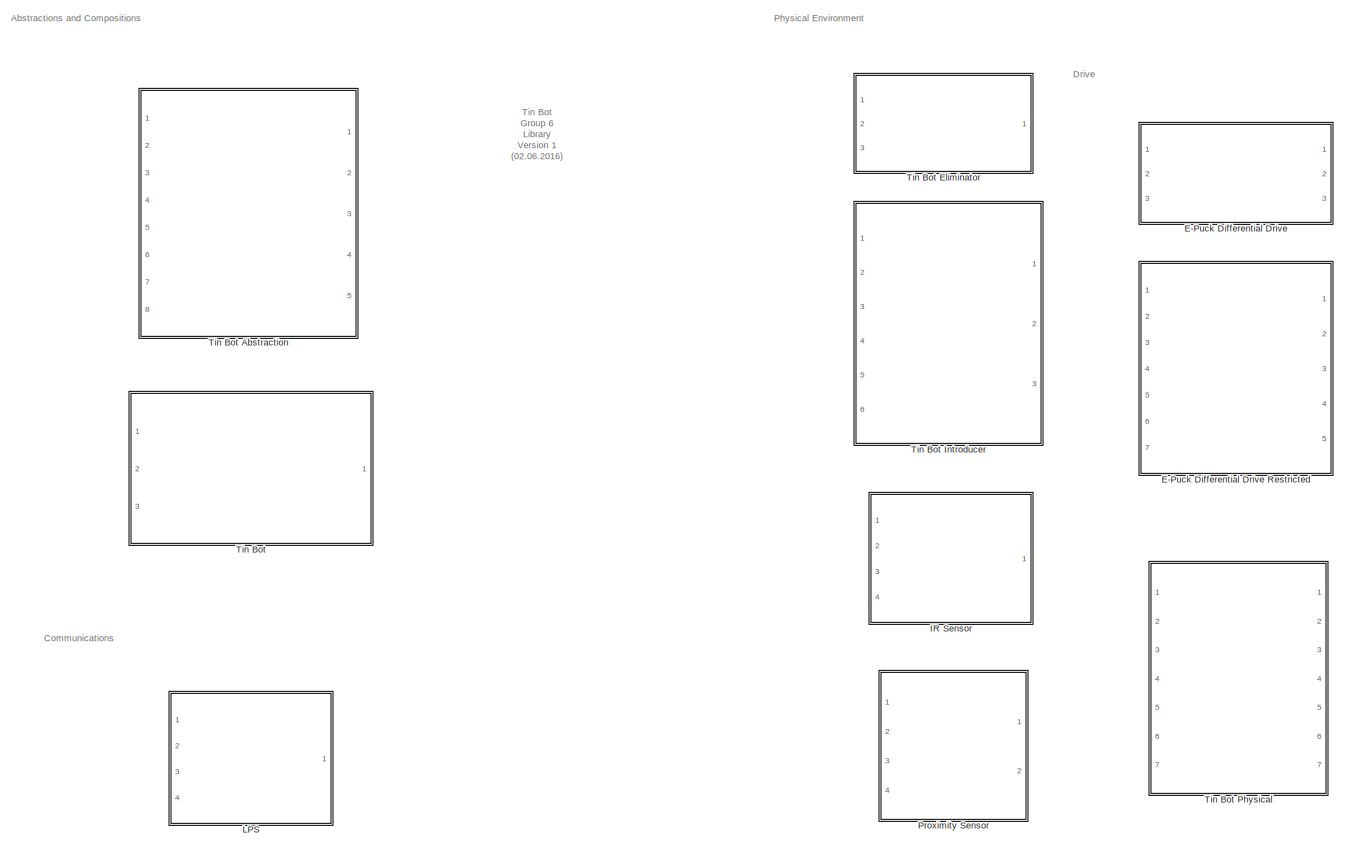
[diagram: root canvas - part 1/3, left side, full height]
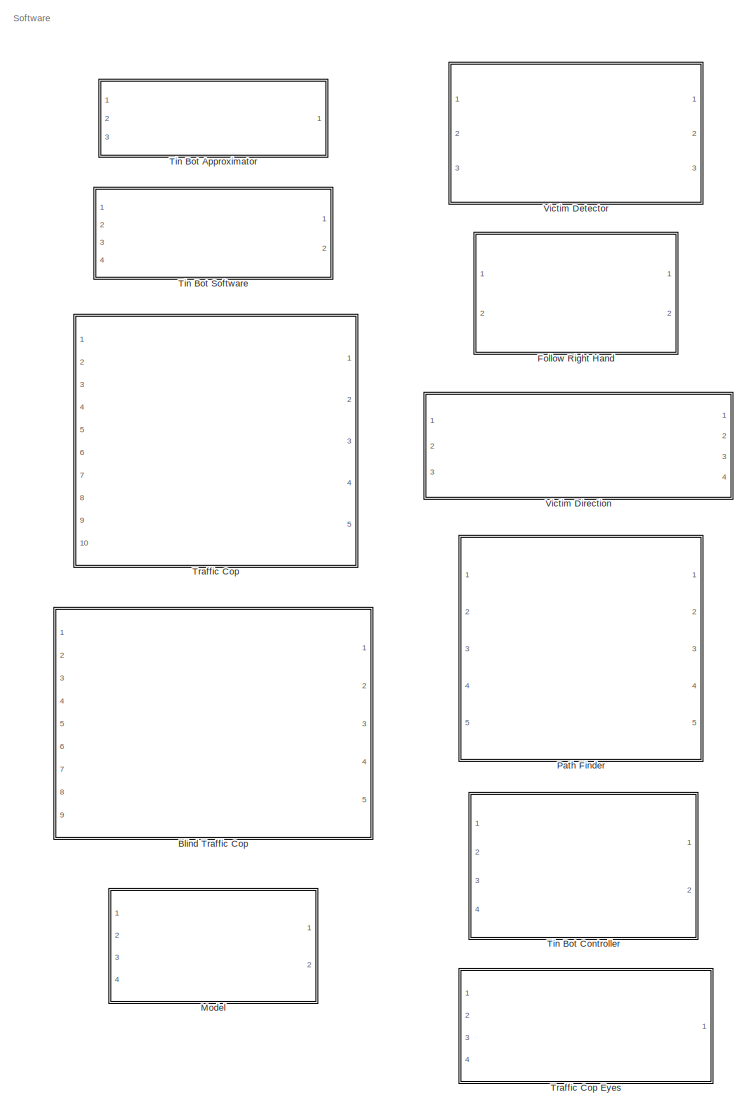
[diagram: root canvas - part 2/3, right side, full height]
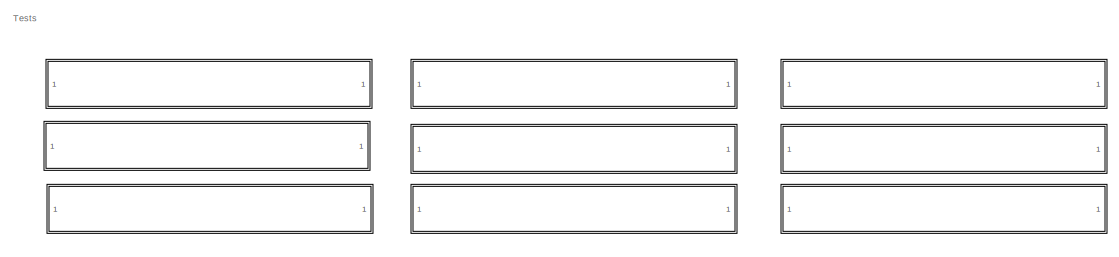
[diagram: root canvas - part 3/3, bottom left region]
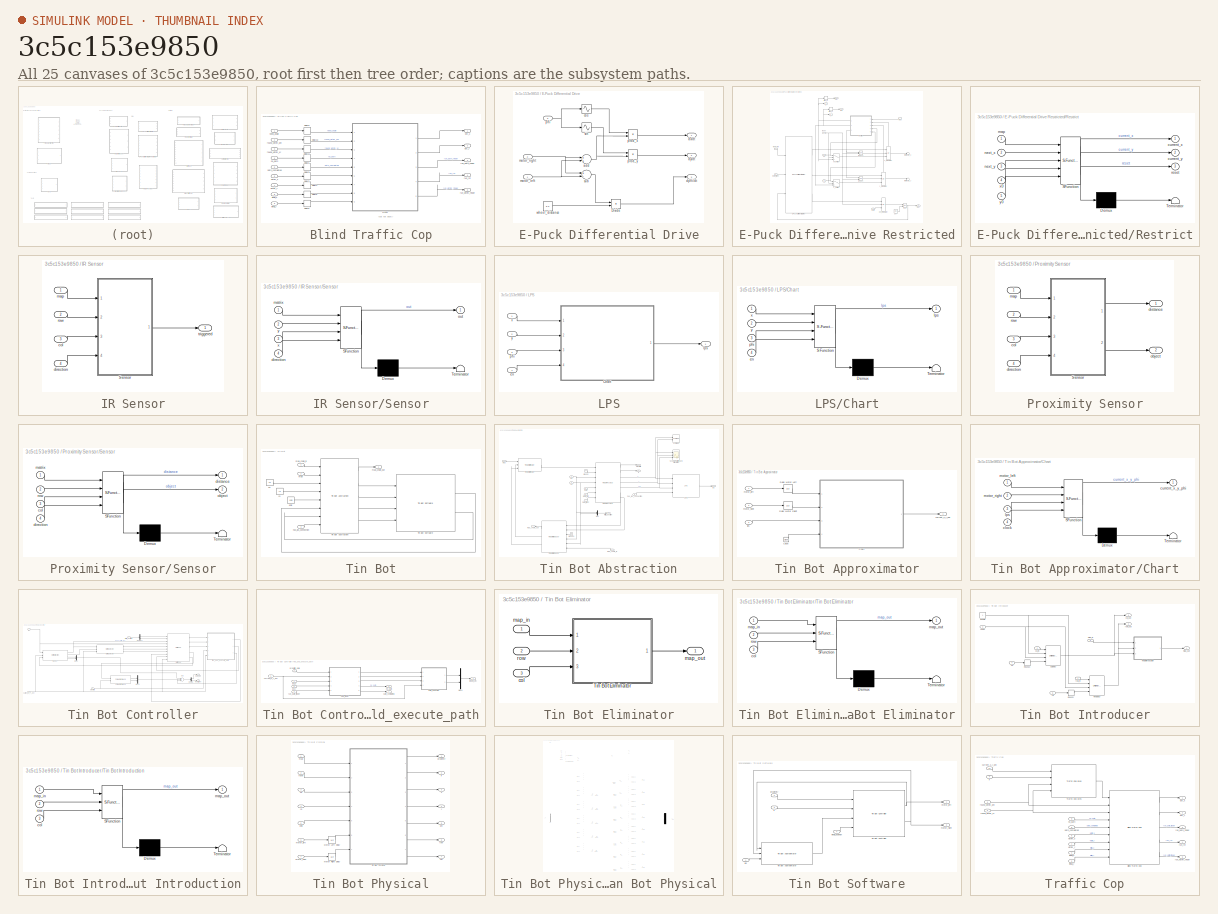
[diagram: thumbnail index - all 25 canvases of the model, root first then tree order]
MODEL slx_3c5c153e9850
KIND library
CONFIG AbsTol = auto
CONFIG FixedStep = auto
CONFIG MaxStep = auto
CONFIG MinStep = auto
CONFIG RelTol = 1e-3
CONFIG SampleTimeConstraint = Unconstrained
CONFIG Solver = ode45
CONFIG SolverMode = Auto
CONFIG SolverName = ode45
CONFIG StartTime = 0.0
CONFIG StopTime = 10.0
BLOCK [ModelReference]  
  ModelNameDialog = drive_test.slx
  ModelReferenceVersion = 1.6
  Ports = []
  Variant = off
BLOCK [ModelReference]   
  ModelNameDialog = follow_right_hand_test.slx
  ModelReferenceVersion = 1.48
  Ports = []
  Variant = off
BLOCK [ModelReference]    
  ModelNameDialog = approximator_test.slx
  ModelReferenceVersion = 1.58
  Ports = []
  Variant = off
BLOCK [ModelReference]     
  ModelNameDialog = controller_test.slx
  ModelReferenceVersion = 1.74
  Ports = []
  Variant = off
BLOCK [ModelReference]       
  ModelNameDialog = ir_test.slx
  ModelReferenceVersion = 1.24
  Ports = []
  Variant = off
BLOCK [ModelReference]        
  ModelNameDialog = path_finder_test.slx
  ModelReferenceVersion = 1.39
  Ports = []
  Variant = off
BLOCK [ModelReference]         
  ModelNameDialog = proximity_test.slx
  ModelReferenceVersion = 1.22
  Ports = []
  Variant = off
BLOCK [ModelReference]          
  ModelNameDialog = traffic_blind_test.mdl
  ModelReferenceVersion = 1.41
  Ports = []
  Variant = off
BLOCK [ModelReference]           
  ModelNameDialog = victim_direction_test.slx
  ModelReferenceVersion = 1.11
  Ports = []
  Variant = off
BLOCK [SubSystem] Blind Traffic Cop
  Ports = [9, 5]
  RequestExecContextInheritance = off
  Variant = off
BLOCK [Delay] Blind Traffic Cop/Delay1
  DelayLength = 1
  InputPortMap = u0
  Ports = [1, 1]
BLOCK [Delay] Blind Traffic Cop/Delay11
  DelayLength = 1
  InputPortMap = u0
  Ports = [1, 1]
BLOCK [Delay] Blind Traffic Cop/Delay13
  DelayLength = 1
  InputPortMap = u0
  Ports = [1, 1]
BLOCK [Delay] Blind Traffic Cop/Delay2
  DelayLength = 1
  InputPortMap = u0
  Ports = [1, 1]
BLOCK [Delay] Blind Traffic Cop/Delay3
  DelayLength = 1
  InputPortMap = u0
  Ports = [1, 1]
BLOCK [Delay] Blind Traffic Cop/Delay4
  DelayLength = 1
  InputPortMap = u0
  Ports = [1, 1]
BLOCK [Delay] Blind Traffic Cop/Delay5
  DelayLength = 1
  InputPortMap = u0
  Ports = [1, 1]
BLOCK [Delay] Blind Traffic Cop/Delay6
  DelayLength = 1
  InputPortMap = u0
  Ports = [1, 1]
BLOCK [Delay] Blind Traffic Cop/Delay9
  DelayLength = 1
  InputPortMap = u0
  Ports = [1, 1]
BLOCK [ModelReference] Blind Traffic Cop/Model
  ModelNameDialog = blind_cop.mdl
  ModelReferenceVersion = 1.103
  Ports = [9, 5]
  Variant = off
BLOCK [Outport] Blind Traffic Cop/dst_x
  IconDisplay = Port number
BLOCK [Outport] Blind Traffic Cop/dst_y
  IconDisplay = Port number
  Port = 2
BLOCK [Inport] Blind Traffic Cop/found_victim_phi
  IconDisplay = Port number
  Port = 2
BLOCK [Inport] Blind Traffic Cop/found_victim_xy
  IconDisplay = Port number
  Port = 3
BLOCK [Inport] Blind Traffic Cop/initial_x
  IconDisplay = Port number
  Port = 8
BLOCK [Inport] Blind Traffic Cop/initial_y
  IconDisplay = Port number
  Port = 9
BLOCK [Inport] Blind Traffic Cop/need_angle
  IconDisplay = Port number
BLOCK [Inport] Blind Traffic Cop/no_path
  IconDisplay = Port number
  Port = 4
BLOCK [Inport] Blind Traffic Cop/path_completed
  IconDisplay = Port number
  Port = 5
BLOCK [Outport] Blind Traffic Cop/run_path_finder
  IconDisplay = Port number
  Port = 3
BLOCK [Outport] Blind Traffic Cop/run_rhr
  IconDisplay = Port number
  Port = 4
BLOCK [Outport] Blind Traffic Cop/run_victim_finder
  IconDisplay = Port number
  Port = 5
BLOCK [Inport] Blind Traffic Cop/victim_x
  IconDisplay = Port number
  Port = 6
BLOCK [Inport] Blind Traffic Cop/victim_y
  IconDisplay = Port number
  Port = 7
BLOCK [SubSystem] E-Puck Differential Drive
  Ports = [3, 3]
  RequestExecContextInheritance = off
  TreatAsAtomicUnit = on
  Variant = off
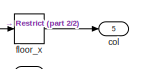
[diagram: E-Puck Differential Drive Restricted - part 1/2, top center region]
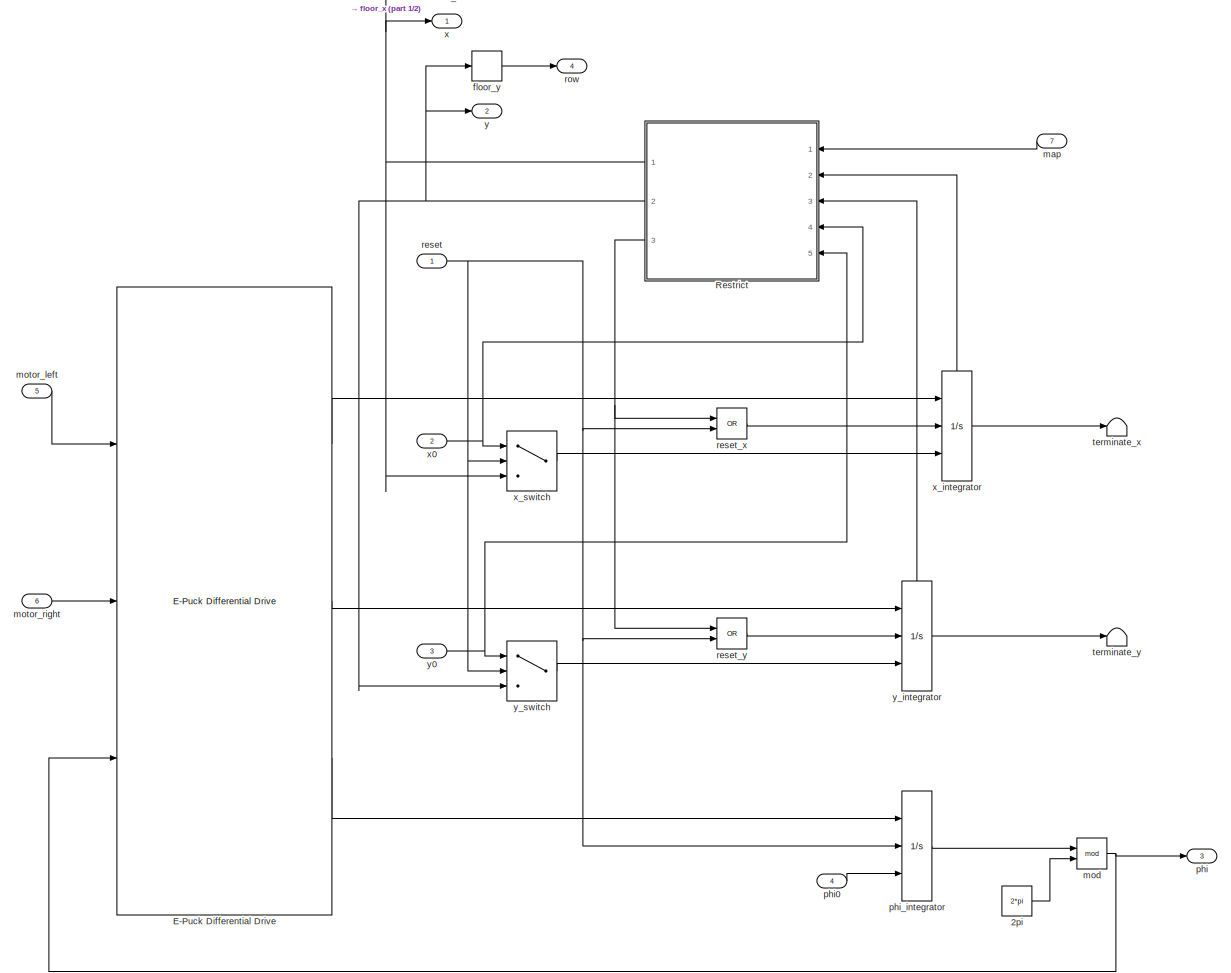
[diagram: E-Puck Differential Drive Restricted - part 2/2, most of the canvas]
BLOCK [SubSystem] E-Puck Differential Drive Restricted
  Ports = [7, 5]
  RequestExecContextInheritance = off
  Variant = off
BLOCK [Constant] E-Puck Differential Drive Restricted/2pi
  Value = 2*pi
BLOCK [Reference] E-Puck Differential Drive Restricted/E-Puck Differential Drive  REF=tinbot/E-Puck Differential Drive  (lib defined in slx_3c5c153e9850, slx_5b2796442827, +1 more)
  Ports = [3, 3]
  SourceBlock = tinbot/E-Puck Differential Drive
BLOCK [SubSystem] E-Puck Differential Drive Restricted/Restrict
  ErrorFcn = Stateflow.Translate.translate
  PermitHierarchicalResolution = ExplicitOnly
  Ports = [5, 3]
  RequestExecContextInheritance = off
  SFBlockType = Chart
  TreatAsAtomicUnit = on
  Variant = off
BLOCK [Demux] E-Puck Differential Drive Restricted/Restrict/ Demux 
  Outputs = 1
  Ports = [1, 1]
BLOCK [S-Function] E-Puck Differential Drive Restricted/Restrict/ SFunction 
  EnableBusSupport = on
  FunctionName = sf_sfun
  PortCounts = [5 4]
  Ports = [5, 4]
  SFunctionDeploymentMode = off
  Tag = Stateflow S-Function tinbot 3
BLOCK [Terminator] E-Puck Differential Drive Restricted/Restrict/ Terminator 
BLOCK [Outport] E-Puck Differential Drive Restricted/Restrict/current_x
  IconDisplay = Port number
BLOCK [Outport] E-Puck Differential Drive Restricted/Restrict/current_y
  IconDisplay = Port number
  Port = 2
BLOCK [Inport] E-Puck Differential Drive Restricted/Restrict/map
  IconDisplay = Port number
BLOCK [Inport] E-Puck Differential Drive Restricted/Restrict/next_x
  IconDisplay = Port number
  Port = 2
BLOCK [Inport] E-Puck Differential Drive Restricted/Restrict/next_y
  IconDisplay = Port number
  Port = 3
BLOCK [Outport] E-Puck Differential Drive Restricted/Restrict/reset
  IconDisplay = Port number
  Port = 3
BLOCK [Inport] E-Puck Differential Drive Restricted/Restrict/x0
  IconDisplay = Port number
  Port = 4
BLOCK [Inport] E-Puck Differential Drive Restricted/Restrict/y0
  IconDisplay = Port number
  Port = 5
BLOCK [Outport] E-Puck Differential Drive Restricted/col
  IconDisplay = Port number
  Port = 5
BLOCK [Rounding] E-Puck Differential Drive Restricted/floor_x
BLOCK [Rounding] E-Puck Differential Drive Restricted/floor_y
BLOCK [Inport] E-Puck Differential Drive Restricted/map
  IconDisplay = Port number
  Port = 7
BLOCK [Math] E-Puck Differential Drive Restricted/mod
  Operator = mod
  Ports = [2, 1]
BLOCK [Inport] E-Puck Differential Drive Restricted/motor_left
  IconDisplay = Port number
  Port = 5
BLOCK [Inport] E-Puck Differential Drive Restricted/motor_right
  IconDisplay = Port number
  Port = 6
BLOCK [Outport] E-Puck Differential Drive Restricted/phi 
  IconDisplay = Port number
  Port = 3
BLOCK [Inport] E-Puck Differential Drive Restricted/phi0
  IconDisplay = Port number
  Port = 4
BLOCK [Integrator] E-Puck Differential Drive Restricted/phi_integrator
  ExternalReset = rising
  InitialConditionSource = external
  Ports = [3, 1]
BLOCK [Inport] E-Puck Differential Drive Restricted/reset
  IconDisplay = Port number
BLOCK [Logic] E-Puck Differential Drive Restricted/reset_x
  AllPortsSameDT = off
  Operator = OR
  OutDataTypeStr = boolean
  Ports = [2, 1]
BLOCK [Logic] E-Puck Differential Drive Restricted/reset_y
  AllPortsSameDT = off
  Operator = OR
  OutDataTypeStr = boolean
  Ports = [2, 1]
BLOCK [Outport] E-Puck Differential Drive Restricted/row
  IconDisplay = Port number
  Port = 4
BLOCK [Terminator] E-Puck Differential Drive Restricted/terminate_x
BLOCK [Terminator] E-Puck Differential Drive Restricted/terminate_y
BLOCK [Outport] E-Puck Differential Drive Restricted/x 
  IconDisplay = Port number
BLOCK [Inport] E-Puck Differential Drive Restricted/x0
  IconDisplay = Port number
  Port = 2
BLOCK [Integrator] E-Puck Differential Drive Restricted/x_integrator
  ExternalReset = rising
  InitialConditionSource = external
  Ports = [3, 1, 0, 0, 1]
  ShowStatePort = on
BLOCK [Switch] E-Puck Differential Drive Restricted/x_switch
  Criteria = u2 ~= 0
  InputSameDT = off
  SaturateOnIntegerOverflow = off
BLOCK [Outport] E-Puck Differential Drive Restricted/y
  IconDisplay = Port number
  Port = 2
BLOCK [Inport] E-Puck Differential Drive Restricted/y0
  IconDisplay = Port number
  Port = 3
BLOCK [Integrator] E-Puck Differential Drive Restricted/y_integrator
  ExternalReset = rising
  InitialConditionSource = external
  Ports = [3, 1, 0, 0, 1]
  ShowStatePort = on
BLOCK [Switch] E-Puck Differential Drive Restricted/y_switch
  Criteria = u2 ~= 0
  InputSameDT = off
  SaturateOnIntegerOverflow = off
BLOCK [Product] E-Puck Differential Drive/Divide
  InputSameDT = off
  Inputs = */
  OutDataTypeStr = Inherit: Inherit via internal rule
  Ports = [2, 1]
  RndMeth = Floor
  SaturateOnIntegerOverflow = off
BLOCK [Sum] E-Puck Differential Drive/add
  InputSameDT = off
  OutDataTypeStr = Inherit: Inherit via internal rule
  Ports = [2, 1]
  SaturateOnIntegerOverflow = off
BLOCK [Sin] E-Puck Differential Drive/cos
  Amplitude = 0.5
  Phase = pi/2
  Ports = [1, 1]
  SampleTime = 0
  TimeSource = Use external signal
BLOCK [Outport] E-Puck Differential Drive/dphi//dt
  IconDisplay = Port number
  Port = 3
BLOCK [Outport] E-Puck Differential Drive/dx//dt
  IconDisplay = Port number
BLOCK [Outport] E-Puck Differential Drive/dy//dt
  IconDisplay = Port number
  Port = 2
BLOCK [Inport] E-Puck Differential Drive/motor_left
  IconDisplay = Port number
BLOCK [Inport] E-Puck Differential Drive/motor_right
  IconDisplay = Port number
  Port = 2
BLOCK [Inport] E-Puck Differential Drive/phi
  IconDisplay = Port number
  Port = 3
BLOCK [Product] E-Puck Differential Drive/prod_x
  InputSameDT = off
  OutDataTypeStr = Inherit: Inherit via internal rule
  Ports = [2, 1]
  RndMeth = Floor
  SaturateOnIntegerOverflow = off
BLOCK [Product] E-Puck Differential Drive/prod_y
  InputSameDT = off
  OutDataTypeStr = Inherit: Inherit via internal rule
  Ports = [2, 1]
  RndMeth = Floor
  SaturateOnIntegerOverflow = off
BLOCK [Sin] E-Puck Differential Drive/sin 
  Amplitude = 0.5
  Ports = [1, 1]
  SampleTime = 0
  TimeSource = Use external signal
BLOCK [Sum] E-Puck Differential Drive/sub
  InputSameDT = off
  Inputs = +-
  OutDataTypeStr = Inherit: Inherit via internal rule
  Ports = [2, 1]
  SaturateOnIntegerOverflow = off
BLOCK [Constant] E-Puck Differential Drive/wheel_distance
  Value = 5.3
BLOCK [ModelReference] Follow Right Hand
  ModelNameDialog = follow_right_hand.mdl
  ModelReferenceVersion = 1.29
  Ports = [2, 2]
  Variant = off
BLOCK [SubSystem] IR Sensor
  Ports = [4, 1]
  RequestExecContextInheritance = off
  Variant = off
BLOCK [SubSystem] IR Sensor/Sensor
  ErrorFcn = Stateflow.Translate.translate
  PermitHierarchicalResolution = ExplicitOnly
  Ports = [4, 1]
  RequestExecContextInheritance = off
  SFBlockType = MATLAB Function
  TreatAsAtomicUnit = on
  Variant = off
BLOCK [Demux] IR Sensor/Sensor/ Demux 
  Outputs = 1
  Ports = [1, 1]
BLOCK [S-Function] IR Sensor/Sensor/ SFunction 
  EnableBusSupport = on
  FunctionName = sf_sfun
  PortCounts = [4 2]
  Ports = [4, 2]
  SFunctionDeploymentMode = off
  Tag = Stateflow S-Function tinbot 5
BLOCK [Terminator] IR Sensor/Sensor/ Terminator 
BLOCK [Inport] IR Sensor/Sensor/direction
  IconDisplay = Port number
  Port = 4
BLOCK [Inport] IR Sensor/Sensor/matrix
  IconDisplay = Port number
BLOCK [Outport] IR Sensor/Sensor/out
  IconDisplay = Port number
BLOCK [Inport] IR Sensor/Sensor/x
  IconDisplay = Port number
  Port = 3
BLOCK [Inport] IR Sensor/Sensor/y
  IconDisplay = Port number
  Port = 2
BLOCK [Inport] IR Sensor/col
  IconDisplay = Port number
  Port = 3
BLOCK [Inport] IR Sensor/direction
  IconDisplay = Port number
  Port = 4
BLOCK [Inport] IR Sensor/map
  IconDisplay = Port number
BLOCK [Inport] IR Sensor/row
  IconDisplay = Port number
  Port = 2
BLOCK [Outport] IR Sensor/triggered
  IconDisplay = Port number
  OutDataTypeStr = boolean
BLOCK [SubSystem] LPS
  Ports = [4, 1]
  RequestExecContextInheritance = off
  Variant = off
BLOCK [SubSystem] LPS/Chart
  ErrorFcn = Stateflow.Translate.translate
  PermitHierarchicalResolution = ExplicitOnly
  Ports = [4, 1]
  RequestExecContextInheritance = off
  SFBlockType = Chart
  Variant = off
BLOCK [Demux] LPS/Chart/ Demux 
  Outputs = 1
  Ports = [1, 1]
BLOCK [S-Function] LPS/Chart/ SFunction 
  EnableBusSupport = off
  FunctionName = sf_sfun
  PortCounts = [4 2]
  Ports = [4, 2]
  SFunctionDeploymentMode = off
  Tag = Stateflow S-Function tinbot 6
BLOCK [Terminator] LPS/Chart/ Terminator 
BLOCK [Inport] LPS/Chart/en
  IconDisplay = Port number
  Port = 4
BLOCK [Outport] LPS/Chart/lps
  IconDisplay = Port number
BLOCK [Inport] LPS/Chart/phi
  IconDisplay = Port number
  Port = 3
BLOCK [Inport] LPS/Chart/x
  IconDisplay = Port number
BLOCK [Inport] LPS/Chart/y
  IconDisplay = Port number
  Port = 2
BLOCK [Inport] LPS/en
  IconDisplay = Port number
  Port = 4
BLOCK [Outport] LPS/lps
  IconDisplay = Port number
BLOCK [Inport] LPS/phi
  IconDisplay = Port number
  Port = 3
BLOCK [Inport] LPS/x
  IconDisplay = Port number
BLOCK [Inport] LPS/y
  IconDisplay = Port number
  Port = 2
BLOCK [ModelReference] Model
  ModelNameDialog = Path.slx
  ModelReferenceVersion = 1.30
  Ports = [4, 2]
  Variant = off
BLOCK [ModelReference] Path Finder
  ModelNameDialog = path_finder.mdl
  ModelReferenceVersion = 1.117
  Ports = [5, 5]
  Variant = off
BLOCK [SubSystem] Proximity Sensor
  Ports = [4, 2]
  RequestExecContextInheritance = off
  Variant = off
BLOCK [SubSystem] Proximity Sensor/Sensor
  ErrorFcn = Stateflow.Translate.translate
  PermitHierarchicalResolution = ExplicitOnly
  Ports = [4, 2]
  RequestExecContextInheritance = off
  SFBlockType = MATLAB Function
  TreatAsAtomicUnit = on
  Variant = off
BLOCK [Demux] Proximity Sensor/Sensor/ Demux 
  Outputs = 1
  Ports = [1, 1]
BLOCK [S-Function] Proximity Sensor/Sensor/ SFunction 
  EnableBusSupport = on
  FunctionName = sf_sfun
  PortCounts = [4 3]
  Ports = [4, 3]
  SFunctionDeploymentMode = off
  Tag = Stateflow S-Function tinbot 4
BLOCK [Terminator] Proximity Sensor/Sensor/ Terminator 
BLOCK [Inport] Proximity Sensor/Sensor/col
  IconDisplay = Port number
  Port = 3
BLOCK [Inport] Proximity Sensor/Sensor/direction
  IconDisplay = Port number
  Port = 4
BLOCK [Outport] Proximity Sensor/Sensor/distance
  IconDisplay = Port number
BLOCK [Inport] Proximity Sensor/Sensor/matrix
  IconDisplay = Port number
BLOCK [Outport] Proximity Sensor/Sensor/object
  IconDisplay = Port number
  Port = 2
BLOCK [Inport] Proximity Sensor/Sensor/row
  IconDisplay = Port number
  Port = 2
BLOCK [Inport] Proximity Sensor/col
  IconDisplay = Port number
  Port = 3
BLOCK [Inport] Proximity Sensor/direction
  IconDisplay = Port number
  Port = 4
BLOCK [Outport] Proximity Sensor/distance
  IconDisplay = Port number
BLOCK [Inport] Proximity Sensor/map
  IconDisplay = Port number
BLOCK [Outport] Proximity Sensor/object
  IconDisplay = Port number
  Port = 2
BLOCK [Inport] Proximity Sensor/row
  IconDisplay = Port number
  Port = 2
BLOCK [SubSystem] Tin Bot
  Ports = [3, 1]
  RequestExecContextInheritance = off
  Variant = off
BLOCK [SubSystem] Tin Bot Abstraction
  Ports = [8, 5]
  RequestExecContextInheritance = off
  Variant = off
BLOCK [Ground] Tin Bot Abstraction/Ground
BLOCK [Ground] Tin Bot Abstraction/Ground1
BLOCK [Reference] Tin Bot Abstraction/LPS  REF=tinbot/LPS  (lib defined in slx_3c5c153e9850, slx_5b2796442827, +1 more)
  Ports = [4, 1]
  SourceBlock = tinbot/LPS
BLOCK [Mux] Tin Bot Abstraction/Mux
  DisplayOption = bar
  Inputs = 2
  Ports = [2, 1]
BLOCK [Scope] Tin Bot Abstraction/Scope Position and Orientation
  NumInputPorts = 3
  Ports = [3]
  ScopeSpecificationString = Simulink.scopes.TimeScopeBlockCfg('CurrentConfiguration', extmgr.ConfigurationSet(extmgr.Configuration('Core','General UI',true),extmgr.Configuration('Core','Source UI',true),extmgr.Configuration('Sources','WiredSimulink',true),extmgr.Configuration('Visuals','Time Domain',true),extmgr.Configuration('Tools','Plot Navigation',true),extmgr.Configuration('Tools','Measurements',true,'Version','2016a'))...<+48ch>
BLOCK [Reference] Tin Bot Abstraction/Tin Bot Eliminator  REF=tinbot/Tin Bot Eliminator  (lib defined in slx_3c5c153e9850, slx_5b2796442827, +1 more)
  Ports = [3, 1]
  SourceBlock = tinbot/Tin Bot Eliminator
BLOCK [Reference] Tin Bot Abstraction/Tin Bot Introducer  REF=tinbot/Tin Bot Introducer  (lib defined in slx_3c5c153e9850, slx_5b2796442827, +1 more)
  Ports = [6, 3]
  SourceBlock = tinbot/Tin Bot Introducer
BLOCK [Reference] Tin Bot Abstraction/Tin Bot Physical  REF=tinbot/Tin Bot Physical  (lib defined in slx_3c5c153e9850, slx_5b2796442827, +1 more)
  Ports = [7, 7]
  SourceBlock = tinbot/Tin Bot Physical
BLOCK [Reference] Tin Bot Abstraction/XY Graph  REF=simulink/Sinks/XY Graph
  Ports = [2]
  SourceBlock = simulink/Sinks/XY Graph
  SourceType = XY scope.
BLOCK [Inport] Tin Bot Abstraction/has_lps_connection
  IconDisplay = Port number
  Port = 8
BLOCK [Outport] Tin Bot Abstraction/initial_position
  IconDisplay = Port number
  Port = 5
BLOCK [Outport] Tin Bot Abstraction/ir
  IconDisplay = Port number
  Port = 4
BLOCK [Outport] Tin Bot Abstraction/lps
  IconDisplay = Port number
  Port = 2
BLOCK [Inport] Tin Bot Abstraction/map
  IconDisplay = Port number
  Port = 2
BLOCK [Inport] Tin Bot Abstraction/map_chain_in
  IconDisplay = Port number
BLOCK [Outport] Tin Bot Abstraction/map_chain_out
  IconDisplay = Port number
BLOCK [Inport] Tin Bot Abstraction/motor_left
  IconDisplay = Port number
  Port = 6
BLOCK [Inport] Tin Bot Abstraction/motor_right
  IconDisplay = Port number
  Port = 7
BLOCK [Inport] Tin Bot Abstraction/phi0
  IconDisplay = Port number
  Port = 5
BLOCK [Outport] Tin Bot Abstraction/proximity
  IconDisplay = Port number
  Port = 3
BLOCK [Inport] Tin Bot Abstraction/x0
  IconDisplay = Port number
  Port = 3
BLOCK [Inport] Tin Bot Abstraction/y0
  IconDisplay = Port number
  Port = 4
BLOCK [SubSystem] Tin Bot Approximator
  Ports = [3, 1]
  RequestExecContextInheritance = off
  Variant = off
BLOCK [SubSystem] Tin Bot Approximator/Chart
  ErrorFcn = Stateflow.Translate.translate
  PermitHierarchicalResolution = ExplicitOnly
  Ports = [4, 1]
  RequestExecContextInheritance = off
  SFBlockType = Chart
  TreatAsAtomicUnit = on
  Variant = off
BLOCK [Demux] Tin Bot Approximator/Chart/ Demux 
  Outputs = 1
  Ports = [1, 1]
BLOCK [S-Function] Tin Bot Approximator/Chart/ SFunction 
  EnableBusSupport = on
  FunctionName = sf_sfun
  PortCounts = [4 2]
  Ports = [4, 2]
  SFunctionDeploymentMode = off
  Tag = Stateflow S-Function tinbot 7
BLOCK [Terminator] Tin Bot Approximator/Chart/ Terminator 
BLOCK [Inport] Tin Bot Approximator/Chart/clock
  IconDisplay = Port number
  Port = 4
BLOCK [Outport] Tin Bot Approximator/Chart/current_x_y_phi
  IconDisplay = Port number
BLOCK [Inport] Tin Bot Approximator/Chart/lps
  IconDisplay = Port number
  Port = 3
BLOCK [Inport] Tin Bot Approximator/Chart/motor_left
  IconDisplay = Port number
BLOCK [Inport] Tin Bot Approximator/Chart/motor_right
  IconDisplay = Port number
  Port = 2
BLOCK [Clock] Tin Bot Approximator/Clock
BLOCK [UnitDelay] Tin Bot Approximator/Delay Motor Left
  InputProcessing = Elements as channels (sample based)
  SampleTime = -1
BLOCK [UnitDelay] Tin Bot Approximator/Delay Motor Right
  InputProcessing = Elements as channels (sample based)
  SampleTime = -1
BLOCK [Outport] Tin Bot Approximator/current_x_y_phi
  IconDisplay = Port number
  PortDimensions = [3]
BLOCK [Inport] Tin Bot Approximator/lps
  IconDisplay = Port number
  Port = 3
  PortDimensions = [3]
BLOCK [Inport] Tin Bot Approximator/motor_left
  IconDisplay = Port number
BLOCK [Inport] Tin Bot Approximator/motor_right
  IconDisplay = Port number
  Port = 2
BLOCK [SubSystem] Tin Bot Controller
  Ports = [4, 2]
  RequestExecContextInheritance = off
  Variant = off
BLOCK [Sum] Tin Bot Controller/Add
  InputSameDT = off
  Inputs = +++
  OutDataTypeStr = Inherit: Inherit via internal rule
  Ports = [3, 1]
  SaturateOnIntegerOverflow = off
BLOCK [Demux] Tin Bot Controller/Demux
  DisplayOption = bar
  Outputs = 2
  Ports = [1, 2]
BLOCK [Demux] Tin Bot Controller/Demux1
  DisplayOption = bar
  Outputs = 2
  Ports = [1, 2]
BLOCK [Reference] Tin Bot Controller/Follow Right Hand  REF=tinbot/Follow Right Hand  (lib defined in slx_3c5c153e9850, slx_5b2796442827, +1 more)
  Ports = [2, 2]
  SourceBlock = tinbot/Follow Right Hand
BLOCK [Reference] Tin Bot Controller/Model  REF=tinbot/Victim Direction  (lib defined in slx_3c5c153e9850, slx_5b2796442827, +1 more)
  Ports = [3, 4]
  SourceBlock = tinbot/Victim Direction
BLOCK [Mux] Tin Bot Controller/Mux1
  DisplayOption = bar
  Inputs = 2
  Ports = [2, 1]
BLOCK [Mux] Tin Bot Controller/Mux3
  DisplayOption = bar
  Inputs = 2
  Ports = [2, 1]
BLOCK [Reference] Tin Bot Controller/Traffic Cop  REF=tinbot/Traffic Cop  (lib defined in slx_3c5c153e9850, slx_5b2796442827, +1 more)
  Ports = [10, 5]
  SourceBlock = tinbot/Traffic Cop
BLOCK [Reference] Tin Bot Controller/Victim Detector  REF=tinbot/Victim Detector  (lib defined in slx_3c5c153e9850, slx_5b2796442827, +1 more)
  Ports = [3, 3]
  SourceBlock = tinbot/Victim Detector
BLOCK [Inport] Tin Bot Controller/current_x_y_phi
  IconDisplay = Port number
  Port = 3
BLOCK [SubSystem] Tin Bot Controller/find_and_execute_path
  Ports = [5, 3]
  RequestExecContextInheritance = off
  Variant = off
BLOCK [Mux] Tin Bot Controller/find_and_execute_path/Mux4
  DisplayOption = bar
  Inputs = 2
  Ports = [2, 1]
BLOCK [Inport] Tin Bot Controller/find_and_execute_path/current_x_y_phi
  IconDisplay = Port number
  Port = 5
BLOCK [Inport] Tin Bot Controller/find_and_execute_path/dst_x
  IconDisplay = Port number
BLOCK [Inport] Tin Bot Controller/find_and_execute_path/dst_y
  IconDisplay = Port number
  Port = 2
BLOCK [Outport] Tin Bot Controller/find_and_execute_path/no_path
  IconDisplay = Port number
  Port = 2
BLOCK [Outport] Tin Bot Controller/find_and_execute_path/path_completed
  IconDisplay = Port number
BLOCK [ModelReference] Tin Bot Controller/find_and_execute_path/path_executor
  ModelNameDialog = Path.slx
  ModelReferenceVersion = 1.30
  Ports = [4, 2]
  Variant = off
BLOCK [ModelReference] Tin Bot Controller/find_and_execute_path/path_finder
  ModelNameDialog = path_finder
  ModelReferenceVersion = 1.117
  Ports = [5, 5]
  Variant = off
BLOCK [Inport] Tin Bot Controller/find_and_execute_path/proximity_data
  IconDisplay = Port number
  Port = 4
BLOCK [Inport] Tin Bot Controller/find_and_execute_path/run_path_finder
  IconDisplay = Port number
  Port = 3
BLOCK [Outport] Tin Bot Controller/find_and_execute_path/wheel_ctrl
  IconDisplay = Port number
  Port = 3
BLOCK [Inport] Tin Bot Controller/initial_position
  IconDisplay = Port number
  Port = 4
BLOCK [Inport] Tin Bot Controller/ir
  IconDisplay = Port number
  Port = 2
BLOCK [Outport] Tin Bot Controller/motor_left
  IconDisplay = Port number
BLOCK [Outport] Tin Bot Controller/motor_right
  IconDisplay = Port number
  Port = 2
BLOCK [Inport] Tin Bot Controller/proximity
  IconDisplay = Port number
BLOCK [SubSystem] Tin Bot Eliminator
  Ports = [3, 1]
  RequestExecContextInheritance = off
  Variant = off
BLOCK [SubSystem] Tin Bot Eliminator/Tin Bot Eliminator
  ErrorFcn = Stateflow.Translate.translate
  PermitHierarchicalResolution = ExplicitOnly
  Ports = [3, 1]
  RequestExecContextInheritance = off
  SFBlockType = MATLAB Function
  TreatAsAtomicUnit = on
  Variant = off
BLOCK [Demux] Tin Bot Eliminator/Tin Bot Eliminator/ Demux 
  Outputs = 1
  Ports = [1, 1]
BLOCK [S-Function] Tin Bot Eliminator/Tin Bot Eliminator/ SFunction 
  EnableBusSupport = on
  FunctionName = sf_sfun
  PortCounts = [3 2]
  Ports = [3, 2]
  SFunctionDeploymentMode = off
  Tag = Stateflow S-Function tinbot 1
BLOCK [Terminator] Tin Bot Eliminator/Tin Bot Eliminator/ Terminator 
BLOCK [Inport] Tin Bot Eliminator/Tin Bot Eliminator/col
  IconDisplay = Port number
  Port = 3
BLOCK [Inport] Tin Bot Eliminator/Tin Bot Eliminator/map_in
  IconDisplay = Port number
BLOCK [Outport] Tin Bot Eliminator/Tin Bot Eliminator/map_out
  IconDisplay = Port number
BLOCK [Inport] Tin Bot Eliminator/Tin Bot Eliminator/row
  IconDisplay = Port number
  Port = 2
BLOCK [Inport] Tin Bot Eliminator/col
  IconDisplay = Port number
  Port = 3
BLOCK [Inport] Tin Bot Eliminator/map_in
  IconDisplay = Port number
BLOCK [Outport] Tin Bot Eliminator/map_out
  IconDisplay = Port number
  PortDimensions = [200 200]
BLOCK [Inport] Tin Bot Eliminator/row
  IconDisplay = Port number
  Port = 2
BLOCK [SubSystem] Tin Bot Introducer
  Ports = [6, 3]
  RequestExecContextInheritance = off
  Variant = off
BLOCK [Reference] Tin Bot Introducer/Col Delay  REF=simulink/Additional Math
& Discrete/Additional
Discrete/Unit Delay
Enabled
Resettable
External IC
  Ports = [4, 1]
  SourceBlock = simulink/Additional Math\n& Discrete/Additional\nDiscrete/Unit Delay\nEnabled\nResettable\nExternal IC
  SourceType = Unit Delay Enabled Resettable External Initial Condition
BLOCK [Constant] Tin Bot Introducer/Enable
BLOCK [Rounding] Tin Bot Introducer/Round  X
BLOCK [Rounding] Tin Bot Introducer/Round Y
BLOCK [Reference] Tin Bot Introducer/Row Delay  REF=simulink/Additional Math
& Discrete/Additional
Discrete/Unit Delay
Enabled
Resettable
External IC
  Ports = [4, 1]
  SourceBlock = simulink/Additional Math\n& Discrete/Additional\nDiscrete/Unit Delay\nEnabled\nResettable\nExternal IC
  SourceType = Unit Delay Enabled Resettable External Initial Condition
BLOCK [SubSystem] Tin Bot Introducer/Tin Bot Introduction
  ErrorFcn = Stateflow.Translate.translate
  PermitHierarchicalResolution = ExplicitOnly
  Ports = [3, 1]
  RequestExecContextInheritance = off
  SFBlockType = MATLAB Function
  TreatAsAtomicUnit = on
  Variant = off
BLOCK [Demux] Tin Bot Introducer/Tin Bot Introduction/ Demux 
  Outputs = 1
  Ports = [1, 1]
BLOCK [S-Function] Tin Bot Introducer/Tin Bot Introduction/ SFunction 
  EnableBusSupport = on
  FunctionName = sf_sfun
  PortCounts = [3 2]
  Ports = [3, 2]
  SFunctionDeploymentMode = off
  Tag = Stateflow S-Function tinbot 2
BLOCK [Terminator] Tin Bot Introducer/Tin Bot Introduction/ Terminator 
BLOCK [Inport] Tin Bot Introducer/Tin Bot Introduction/col
  IconDisplay = Port number
  Port = 3
BLOCK [Inport] Tin Bot Introducer/Tin Bot Introduction/map_in
  IconDisplay = Port number
BLOCK [Outport] Tin Bot Introducer/Tin Bot Introduction/map_out
  IconDisplay = Port number
BLOCK [Inport] Tin Bot Introducer/Tin Bot Introduction/row
  IconDisplay = Port number
  Port = 2
BLOCK [Inport] Tin Bot Introducer/col_in
  IconDisplay = Port number
  Interpolate = off
  Port = 2
BLOCK [Outport] Tin Bot Introducer/col_out
  IconDisplay = Port number
  Port = 3
BLOCK [Inport] Tin Bot Introducer/map_in
  IconDisplay = Port number
  Interpolate = off
  Port = 6
BLOCK [Outport] Tin Bot Introducer/map_out
  IconDisplay = Port number
BLOCK [Inport] Tin Bot Introducer/reset
  IconDisplay = Port number
  Port = 3
BLOCK [Inport] Tin Bot Introducer/row_in
  IconDisplay = Port number
  Interpolate = off
BLOCK [Outport] Tin Bot Introducer/row_out
  IconDisplay = Port number
  Port = 2
BLOCK [Inport] Tin Bot Introducer/x0
  IconDisplay = Port number
  Port = 4
BLOCK [Inport] Tin Bot Introducer/y0
  IconDisplay = Port number
  Port = 5
BLOCK [SubSystem] Tin Bot Physical
  Ports = [7, 7]
  RequestExecContextInheritance = off
  Variant = off
BLOCK [UnitDelay] Tin Bot Physical/Motor Left Delay
  InputProcessing = Elements as channels (sample based)
  SampleTime = -1
BLOCK [UnitDelay] Tin Bot Physical/Motor Right Delay
  InputProcessing = Elements as channels (sample based)
  SampleTime = -1
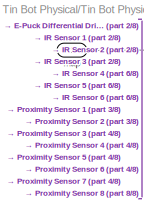
[diagram: Tin Bot Physical/Tin Bot Physical - part 1/8, top left region]
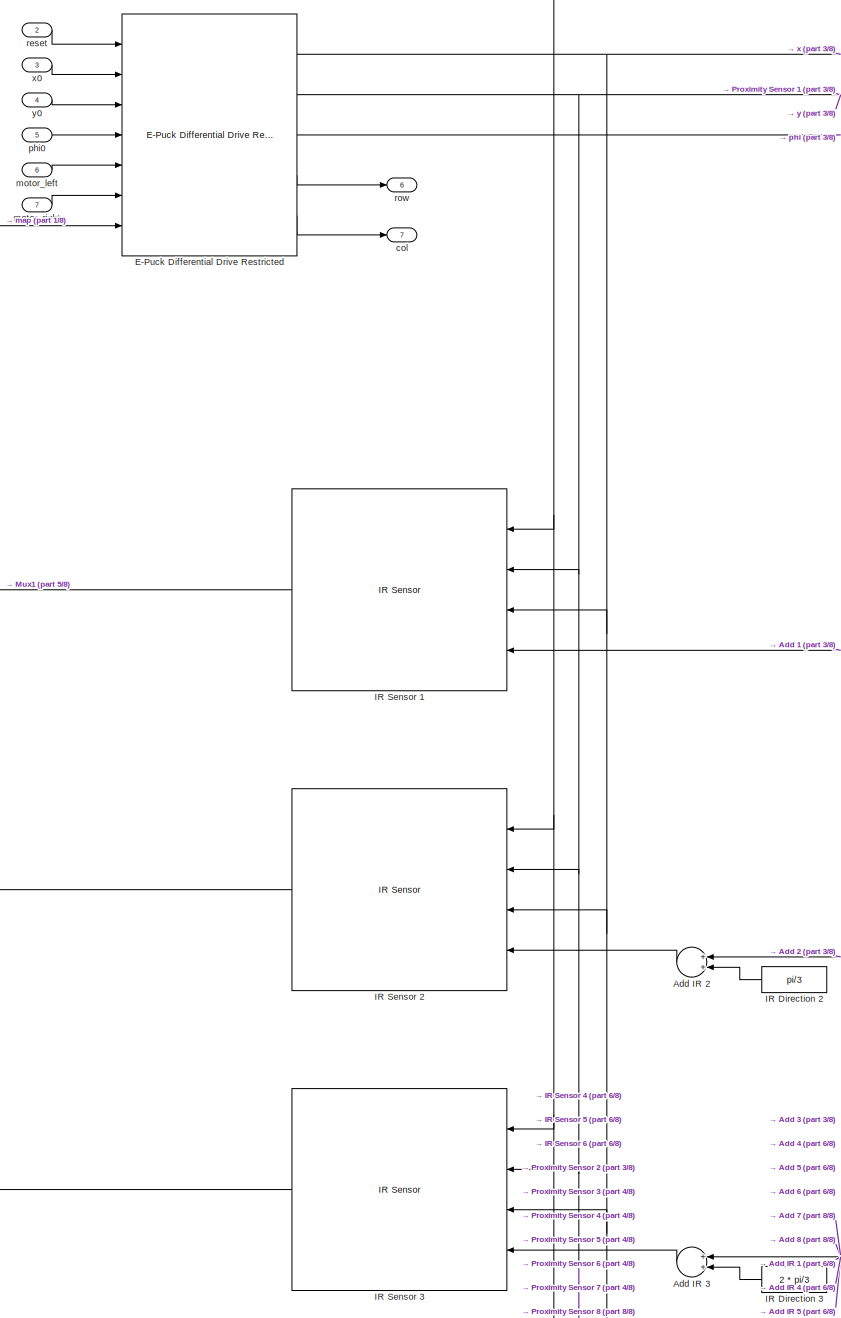
[diagram: Tin Bot Physical/Tin Bot Physical - part 2/8, top left region]
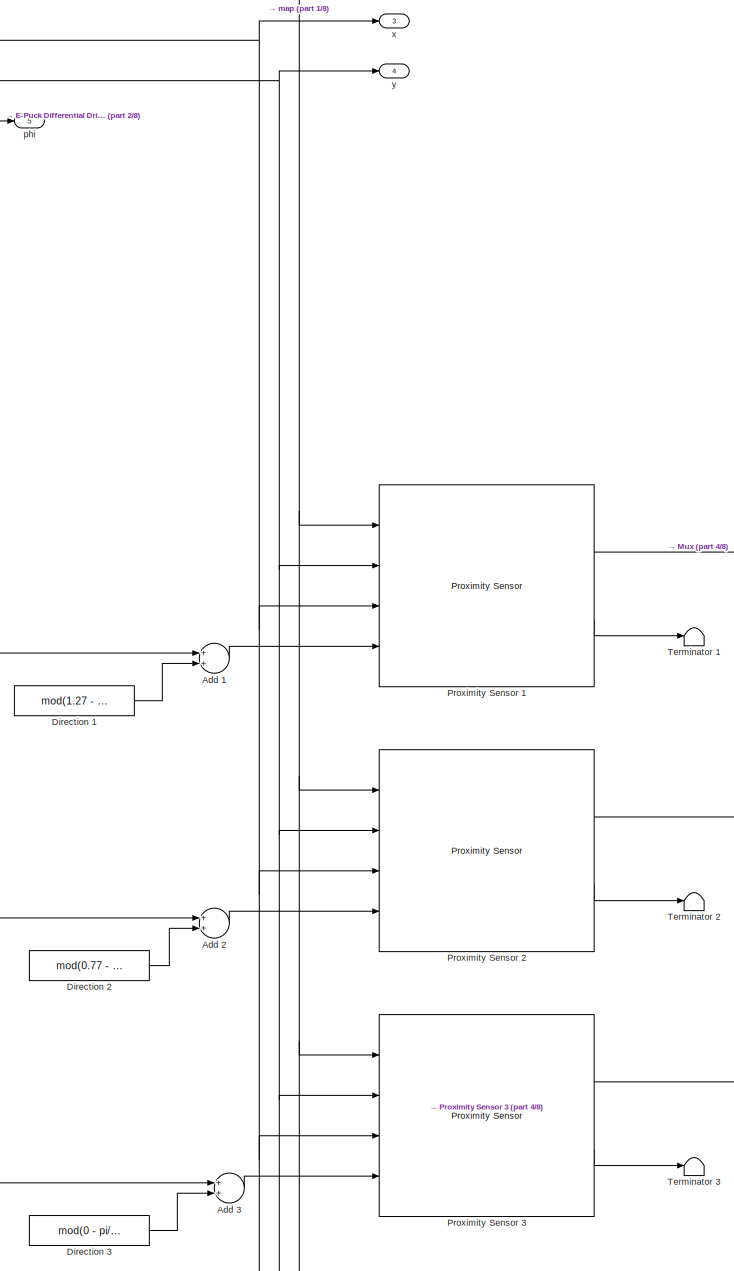
[diagram: Tin Bot Physical/Tin Bot Physical - part 3/8, top center region]
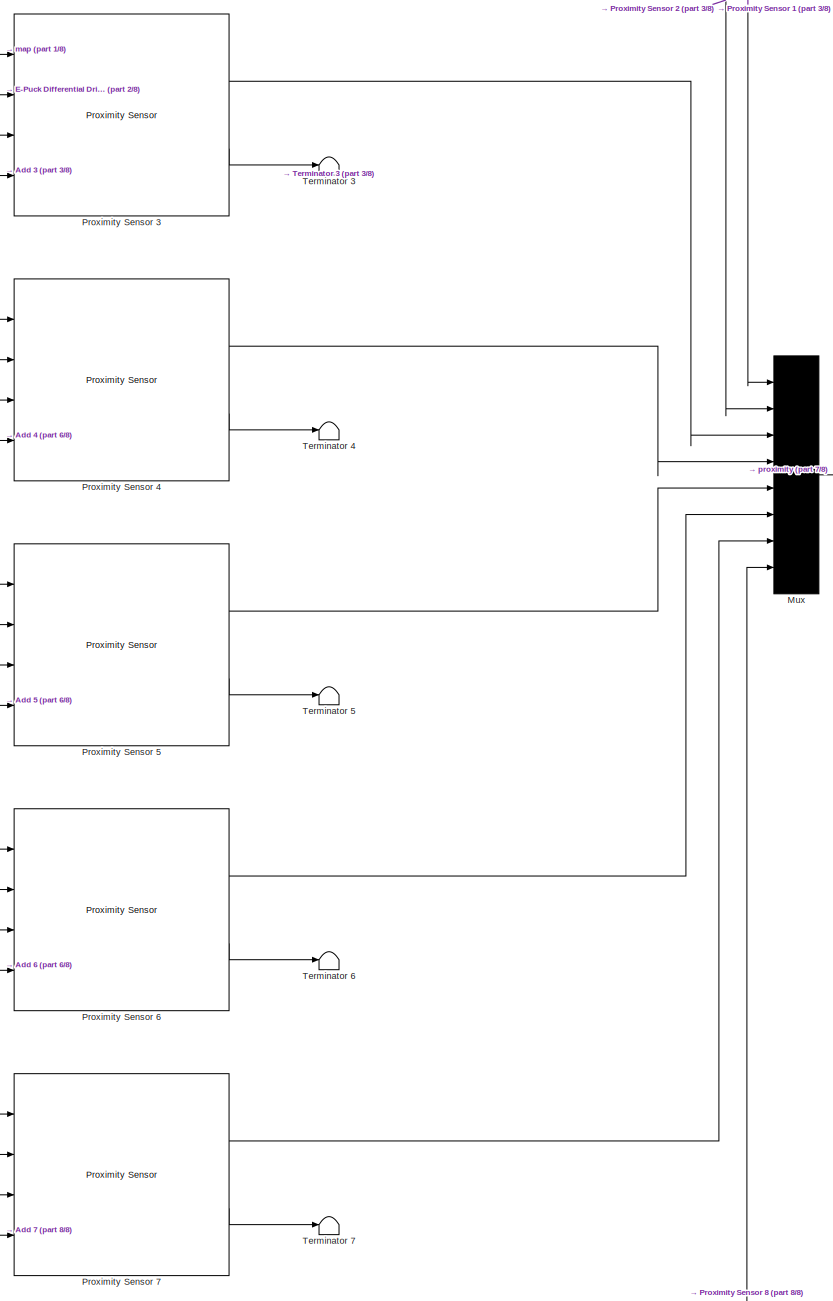
[diagram: Tin Bot Physical/Tin Bot Physical - part 4/8, middle right region]
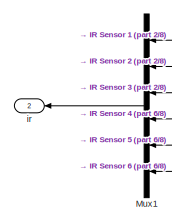
[diagram: Tin Bot Physical/Tin Bot Physical - part 5/8, middle left region]
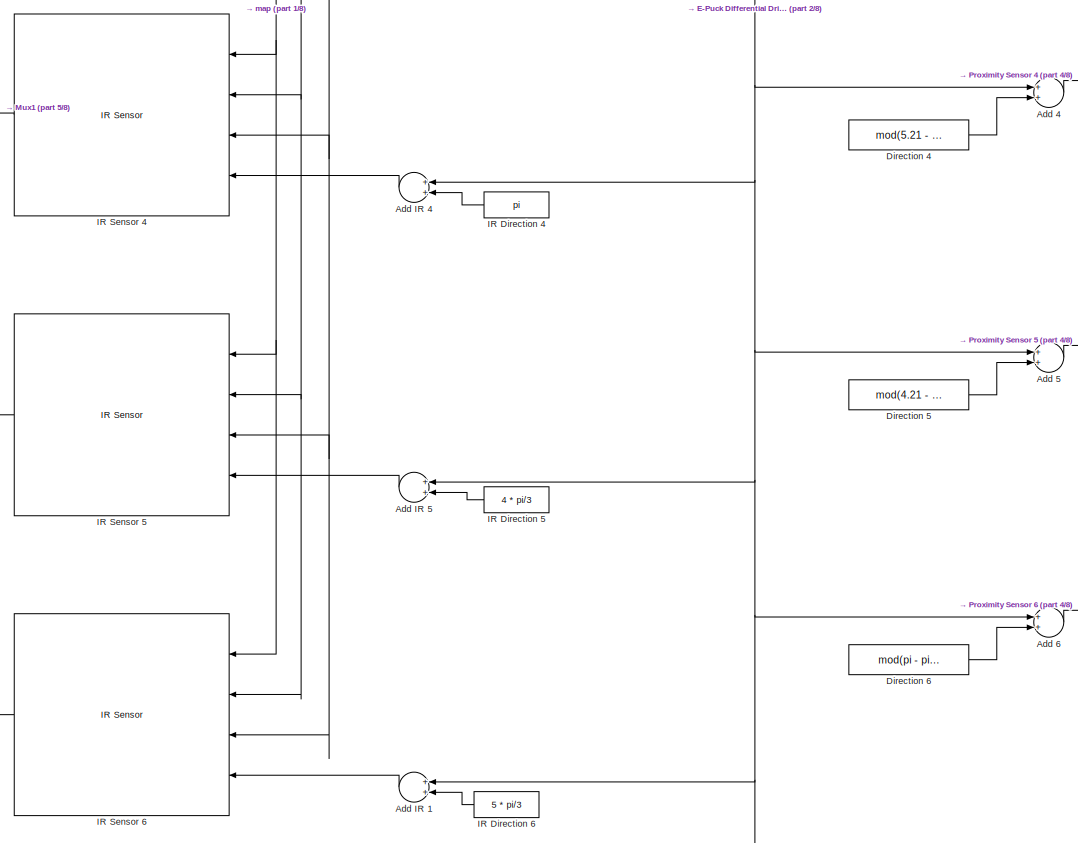
[diagram: Tin Bot Physical/Tin Bot Physical - part 6/8, bottom center region]
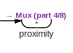
[diagram: Tin Bot Physical/Tin Bot Physical - part 7/8, middle right region]
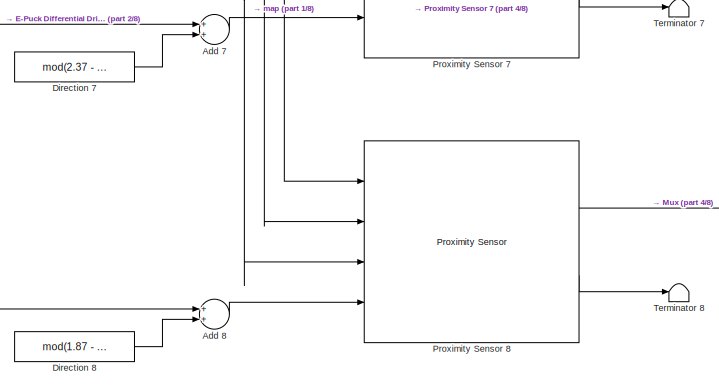
[diagram: Tin Bot Physical/Tin Bot Physical - part 8/8, bottom center region]
BLOCK [SubSystem] Tin Bot Physical/Tin Bot Physical
  Ports = [7, 7]
  RequestExecContextInheritance = off
  TreatAsAtomicUnit = on
  Variant = off
BLOCK [Sum] Tin Bot Physical/Tin Bot Physical/Add 1
  InputSameDT = off
  OutDataTypeStr = Inherit: Inherit via internal rule
  Ports = [2, 1]
  SaturateOnIntegerOverflow = off
BLOCK [Sum] Tin Bot Physical/Tin Bot Physical/Add 2
  InputSameDT = off
  OutDataTypeStr = Inherit: Inherit via internal rule
  Ports = [2, 1]
  SaturateOnIntegerOverflow = off
BLOCK [Sum] Tin Bot Physical/Tin Bot Physical/Add 3
  InputSameDT = off
  OutDataTypeStr = Inherit: Inherit via internal rule
  Ports = [2, 1]
  SaturateOnIntegerOverflow = off
BLOCK [Sum] Tin Bot Physical/Tin Bot Physical/Add 4
  InputSameDT = off
  OutDataTypeStr = Inherit: Inherit via internal rule
  Ports = [2, 1]
  SaturateOnIntegerOverflow = off
BLOCK [Sum] Tin Bot Physical/Tin Bot Physical/Add 5
  InputSameDT = off
  OutDataTypeStr = Inherit: Inherit via internal rule
  Ports = [2, 1]
  SaturateOnIntegerOverflow = off
BLOCK [Sum] Tin Bot Physical/Tin Bot Physical/Add 6
  InputSameDT = off
  OutDataTypeStr = Inherit: Inherit via internal rule
  Ports = [2, 1]
  SaturateOnIntegerOverflow = off
BLOCK [Sum] Tin Bot Physical/Tin Bot Physical/Add 7
  InputSameDT = off
  OutDataTypeStr = Inherit: Inherit via internal rule
  Ports = [2, 1]
  SaturateOnIntegerOverflow = off
BLOCK [Sum] Tin Bot Physical/Tin Bot Physical/Add 8
  InputSameDT = off
  OutDataTypeStr = Inherit: Inherit via internal rule
  Ports = [2, 1]
  SaturateOnIntegerOverflow = off
BLOCK [Sum] Tin Bot Physical/Tin Bot Physical/Add IR 1
  InputSameDT = off
  OutDataTypeStr = Inherit: Inherit via internal rule
  Ports = [2, 1]
  SaturateOnIntegerOverflow = off
BLOCK [Sum] Tin Bot Physical/Tin Bot Physical/Add IR 2
  InputSameDT = off
  OutDataTypeStr = Inherit: Inherit via internal rule
  Ports = [2, 1]
  SaturateOnIntegerOverflow = off
BLOCK [Sum] Tin Bot Physical/Tin Bot Physical/Add IR 3
  InputSameDT = off
  OutDataTypeStr = Inherit: Inherit via internal rule
  Ports = [2, 1]
  SaturateOnIntegerOverflow = off
BLOCK [Sum] Tin Bot Physical/Tin Bot Physical/Add IR 4
  InputSameDT = off
  OutDataTypeStr = Inherit: Inherit via internal rule
  Ports = [2, 1]
  SaturateOnIntegerOverflow = off
BLOCK [Sum] Tin Bot Physical/Tin Bot Physical/Add IR 5
  InputSameDT = off
  OutDataTypeStr = Inherit: Inherit via internal rule
  Ports = [2, 1]
  SaturateOnIntegerOverflow = off
BLOCK [Constant] Tin Bot Physical/Tin Bot Physical/Direction 1
  Value = mod(1.27 - pi/2, 2*pi)
BLOCK [Constant] Tin Bot Physical/Tin Bot Physical/Direction 2
  Value = mod(0.77 - pi/2, 2*pi)
BLOCK [Constant] Tin Bot Physical/Tin Bot Physical/Direction 3
  Value = mod(0 - pi/2, 2*pi)
BLOCK [Constant] Tin Bot Physical/Tin Bot Physical/Direction 4
  Value = mod(5.21 - pi/2, 2*pi)
BLOCK [Constant] Tin Bot Physical/Tin Bot Physical/Direction 5
  Value = mod(4.21 - pi/2, 2*pi)
BLOCK [Constant] Tin Bot Physical/Tin Bot Physical/Direction 6
  Value = mod(pi - pi/2, 2*pi)
BLOCK [Constant] Tin Bot Physical/Tin Bot Physical/Direction 7
  Value = mod(2.37 - pi/2, 2*pi)
BLOCK [Constant] Tin Bot Physical/Tin Bot Physical/Direction 8
  Value = mod(1.87 - pi/2, 2*pi)
BLOCK [Reference] Tin Bot Physical/Tin Bot Physical/E-Puck Differential Drive Restricted  REF=tinbot/E-Puck Differential Drive Restricted  (lib defined in slx_3c5c153e9850, slx_5b2796442827, +1 more)
  Ports = [7, 5]
  SourceBlock = tinbot/E-Puck Differential Drive Restricted
BLOCK [Constant] Tin Bot Physical/Tin Bot Physical/IR Direction 2
  Value = pi/3
BLOCK [Constant] Tin Bot Physical/Tin Bot Physical/IR Direction 3
  Value = 2 * pi/3
BLOCK [Constant] Tin Bot Physical/Tin Bot Physical/IR Direction 4
  Value = pi
BLOCK [Constant] Tin Bot Physical/Tin Bot Physical/IR Direction 5
  Value = 4 * pi/3
BLOCK [Constant] Tin Bot Physical/Tin Bot Physical/IR Direction 6
  Value = 5 * pi/3
BLOCK [Reference] Tin Bot Physical/Tin Bot Physical/IR Sensor 1  REF=tinbot/IR Sensor  (lib defined in slx_3c5c153e9850, slx_5b2796442827, +1 more)
  Ports = [4, 1]
  SourceBlock = tinbot/IR Sensor
BLOCK [Reference] Tin Bot Physical/Tin Bot Physical/IR Sensor 2  REF=tinbot/IR Sensor  (lib defined in slx_3c5c153e9850, slx_5b2796442827, +1 more)
  Ports = [4, 1]
  SourceBlock = tinbot/IR Sensor
BLOCK [Reference] Tin Bot Physical/Tin Bot Physical/IR Sensor 3  REF=tinbot/IR Sensor  (lib defined in slx_3c5c153e9850, slx_5b2796442827, +1 more)
  Ports = [4, 1]
  SourceBlock = tinbot/IR Sensor
BLOCK [Reference] Tin Bot Physical/Tin Bot Physical/IR Sensor 4  REF=tinbot/IR Sensor  (lib defined in slx_3c5c153e9850, slx_5b2796442827, +1 more)
  Ports = [4, 1]
  SourceBlock = tinbot/IR Sensor
BLOCK [Reference] Tin Bot Physical/Tin Bot Physical/IR Sensor 5  REF=tinbot/IR Sensor  (lib defined in slx_3c5c153e9850, slx_5b2796442827, +1 more)
  Ports = [4, 1]
  SourceBlock = tinbot/IR Sensor
BLOCK [Reference] Tin Bot Physical/Tin Bot Physical/IR Sensor 6  REF=tinbot/IR Sensor  (lib defined in slx_3c5c153e9850, slx_5b2796442827, +1 more)
  Ports = [4, 1]
  SourceBlock = tinbot/IR Sensor
BLOCK [Mux] Tin Bot Physical/Tin Bot Physical/Mux
  DisplayOption = bar
  Inputs = 8
  Ports = [8, 1]
BLOCK [Mux] Tin Bot Physical/Tin Bot Physical/Mux1
  DisplayOption = bar
  Inputs = 6
  Ports = [6, 1]
BLOCK [Reference] Tin Bot Physical/Tin Bot Physical/Proximity Sensor 1  REF=tinbot/Proximity Sensor  (lib defined in slx_3c5c153e9850, slx_5b2796442827, +1 more)
  Ports = [4, 2]
  SourceBlock = tinbot/Proximity Sensor
BLOCK [Reference] Tin Bot Physical/Tin Bot Physical/Proximity Sensor 2  REF=tinbot/Proximity Sensor  (lib defined in slx_3c5c153e9850, slx_5b2796442827, +1 more)
  Ports = [4, 2]
  SourceBlock = tinbot/Proximity Sensor
BLOCK [Reference] Tin Bot Physical/Tin Bot Physical/Proximity Sensor 3  REF=tinbot/Proximity Sensor  (lib defined in slx_3c5c153e9850, slx_5b2796442827, +1 more)
  Ports = [4, 2]
  SourceBlock = tinbot/Proximity Sensor
BLOCK [Reference] Tin Bot Physical/Tin Bot Physical/Proximity Sensor 4  REF=tinbot/Proximity Sensor  (lib defined in slx_3c5c153e9850, slx_5b2796442827, +1 more)
  Ports = [4, 2]
  SourceBlock = tinbot/Proximity Sensor
BLOCK [Reference] Tin Bot Physical/Tin Bot Physical/Proximity Sensor 5  REF=tinbot/Proximity Sensor  (lib defined in slx_3c5c153e9850, slx_5b2796442827, +1 more)
  Ports = [4, 2]
  SourceBlock = tinbot/Proximity Sensor
BLOCK [Reference] Tin Bot Physical/Tin Bot Physical/Proximity Sensor 6  REF=tinbot/Proximity Sensor  (lib defined in slx_3c5c153e9850, slx_5b2796442827, +1 more)
  Ports = [4, 2]
  SourceBlock = tinbot/Proximity Sensor
BLOCK [Reference] Tin Bot Physical/Tin Bot Physical/Proximity Sensor 7  REF=tinbot/Proximity Sensor  (lib defined in slx_3c5c153e9850, slx_5b2796442827, +1 more)
  Ports = [4, 2]
  SourceBlock = tinbot/Proximity Sensor
BLOCK [Reference] Tin Bot Physical/Tin Bot Physical/Proximity Sensor 8  REF=tinbot/Proximity Sensor  (lib defined in slx_3c5c153e9850, slx_5b2796442827, +1 more)
  Ports = [4, 2]
  SourceBlock = tinbot/Proximity Sensor
BLOCK [Terminator] Tin Bot Physical/Tin Bot Physical/Terminator 1
BLOCK [Terminator] Tin Bot Physical/Tin Bot Physical/Terminator 2
BLOCK [Terminator] Tin Bot Physical/Tin Bot Physical/Terminator 3
BLOCK [Terminator] Tin Bot Physical/Tin Bot Physical/Terminator 4
BLOCK [Terminator] Tin Bot Physical/Tin Bot Physical/Terminator 5
BLOCK [Terminator] Tin Bot Physical/Tin Bot Physical/Terminator 6
BLOCK [Terminator] Tin Bot Physical/Tin Bot Physical/Terminator 7
BLOCK [Terminator] Tin Bot Physical/Tin Bot Physical/Terminator 8
BLOCK [Outport] Tin Bot Physical/Tin Bot Physical/col
  IconDisplay = Port number
  Port = 7
BLOCK [Outport] Tin Bot Physical/Tin Bot Physical/ir
  IconDisplay = Port number
  Port = 2
  PortDimensions = 6
BLOCK [Inport] Tin Bot Physical/Tin Bot Physical/map
  IconDisplay = Port number
BLOCK [Inport] Tin Bot Physical/Tin Bot Physical/motor_left
  IconDisplay = Port number
  Port = 6
BLOCK [Inport] Tin Bot Physical/Tin Bot Physical/motor_right
  IconDisplay = Port number
  Port = 7
BLOCK [Outport] Tin Bot Physical/Tin Bot Physical/phi
  IconDisplay = Port number
  Port = 5
BLOCK [Inport] Tin Bot Physical/Tin Bot Physical/phi0
  IconDisplay = Port number
  Port = 5
BLOCK [Outport] Tin Bot Physical/Tin Bot Physical/proximity
  IconDisplay = Port number
  PortDimensions = 8
BLOCK [Inport] Tin Bot Physical/Tin Bot Physical/reset
  IconDisplay = Port number
  Port = 2
BLOCK [Outport] Tin Bot Physical/Tin Bot Physical/row
  IconDisplay = Port number
  Port = 6
BLOCK [Outport] Tin Bot Physical/Tin Bot Physical/x
  IconDisplay = Port number
  Port = 3
BLOCK [Inport] Tin Bot Physical/Tin Bot Physical/x0
  IconDisplay = Port number
  Port = 3
BLOCK [Outport] Tin Bot Physical/Tin Bot Physical/y
  IconDisplay = Port number
  Port = 4
BLOCK [Inport] Tin Bot Physical/Tin Bot Physical/y0
  IconDisplay = Port number
  Port = 4
BLOCK [Outport] Tin Bot Physical/col
  IconDisplay = Port number
  Port = 7
BLOCK [Outport] Tin Bot Physical/ir
  IconDisplay = Port number
  Port = 2
BLOCK [Inport] Tin Bot Physical/map
  IconDisplay = Port number
BLOCK [Inport] Tin Bot Physical/motor_left
  IconDisplay = Port number
  Port = 6
BLOCK [Inport] Tin Bot Physical/motor_right
  IconDisplay = Port number
  Port = 7
BLOCK [Outport] Tin Bot Physical/phi
  IconDisplay = Port number
  Port = 5
BLOCK [Inport] Tin Bot Physical/phi0
  IconDisplay = Port number
  Port = 5
BLOCK [Outport] Tin Bot Physical/proximity
  IconDisplay = Port number
BLOCK [Inport] Tin Bot Physical/reset
  IconDisplay = Port number
  Port = 2
BLOCK [Outport] Tin Bot Physical/row
  IconDisplay = Port number
  Port = 6
BLOCK [Outport] Tin Bot Physical/x
  IconDisplay = Port number
  Port = 3
BLOCK [Inport] Tin Bot Physical/x0
  IconDisplay = Port number
  Port = 3
BLOCK [Outport] Tin Bot Physical/y
  IconDisplay = Port number
  Port = 4
BLOCK [Inport] Tin Bot Physical/y0
  IconDisplay = Port number
  Port = 4
BLOCK [SubSystem] Tin Bot Software
  Ports = [4, 2]
  RequestExecContextInheritance = off
  Variant = off
BLOCK [Reference] Tin Bot Software/Tin Bot Approximator  REF=tinbot/Tin Bot Approximator  (lib defined in slx_3c5c153e9850, slx_5b2796442827, +1 more)
  Ports = [3, 1]
  SourceBlock = tinbot/Tin Bot Approximator
BLOCK [Reference] Tin Bot Software/Tin Bot Controller  REF=tinbot/Tin Bot Controller  (lib defined in slx_3c5c153e9850, slx_5b2796442827, +1 more)
  Ports = [4, 2]
  SourceBlock = tinbot/Tin Bot Controller
BLOCK [Inport] Tin Bot Software/initial_position
  IconDisplay = Port number
  Port = 4
BLOCK [Inport] Tin Bot Software/ir
  IconDisplay = Port number
  Port = 3
BLOCK [Inport] Tin Bot Software/lps
  IconDisplay = Port number
BLOCK [Outport] Tin Bot Software/motor_left
  IconDisplay = Port number
BLOCK [Outport] Tin Bot Software/motor_right
  IconDisplay = Port number
  Port = 2
BLOCK [Inport] Tin Bot Software/proximity
  IconDisplay = Port number
  Port = 2
BLOCK [Reference] Tin Bot/Tin Bot Abstraction  REF=tinbot/Tin Bot Abstraction  (lib defined in slx_3c5c153e9850, slx_5b2796442827, +1 more)
  Ports = [8, 5]
  SourceBlock = tinbot/Tin Bot Abstraction
BLOCK [Reference] Tin Bot/Tin Bot Software  REF=tinbot/Tin Bot Software  (lib defined in slx_3c5c153e9850, slx_5b2796442827, +1 more)
  Ports = [4, 2]
  SourceBlock = tinbot/Tin Bot Software
BLOCK [Inport] Tin Bot/has_lps_connection
  IconDisplay = Port number
  Port = 3
BLOCK [Inport] Tin Bot/map
  IconDisplay = Port number
  Port = 2
BLOCK [Inport] Tin Bot/map_chain_in
  IconDisplay = Port number
BLOCK [Outport] Tin Bot/map_chain_out
  IconDisplay = Port number
BLOCK [Constant] Tin Bot/phi0
  Value = phi0
BLOCK [Constant] Tin Bot/x0
  Value = x0
BLOCK [Constant] Tin Bot/y0
  Value = y0
BLOCK [SubSystem] Traffic Cop
  Ports = [10, 5]
  RequestExecContextInheritance = off
  Variant = off
BLOCK [ModelReference] Traffic Cop Eyes
  ModelNameDialog = traffic_cop_eyes.mdl
  ModelReferenceVersion = 1.9
  Ports = [4, 1]
  Variant = off
BLOCK [Reference] Traffic Cop/Blind Traffic Cop  REF=tinbot/Blind Traffic Cop  (lib defined in slx_3c5c153e9850, slx_5b2796442827, +1 more)
  Ports = [9, 5]
  SourceBlock = tinbot/Blind Traffic Cop
BLOCK [Reference] Traffic Cop/Traffic Cop Eyes  REF=tinbot/Traffic Cop Eyes  (lib defined in slx_3c5c153e9850, slx_5b2796442827, +1 more)
  Ports = [4, 1]
  SourceBlock = tinbot/Traffic Cop Eyes
BLOCK [Inport] Traffic Cop/current_x_y_phi
  IconDisplay = Port number
  Port = 10
BLOCK [Outport] Traffic Cop/dst_x
  IconDisplay = Port number
BLOCK [Outport] Traffic Cop/dst_y
  IconDisplay = Port number
  Port = 2
BLOCK [Inport] Traffic Cop/found_victim_phi
  IconDisplay = Port number
  Port = 3
BLOCK [Inport] Traffic Cop/found_victim_xy
  IconDisplay = Port number
  Port = 5
BLOCK [Inport] Traffic Cop/initial_x
  IconDisplay = Port number
BLOCK [Inport] Traffic Cop/initial_y
  IconDisplay = Port number
  Port = 2
BLOCK [Inport] Traffic Cop/ir
  IconDisplay = Port number
  Port = 4
BLOCK [Inport] Traffic Cop/no_path
  IconDisplay = Port number
  Port = 9
BLOCK [Inport] Traffic Cop/path_completed
  IconDisplay = Port number
  Port = 8
BLOCK [Outport] Traffic Cop/run_path_finder
  IconDisplay = Port number
  Port = 3
BLOCK [Outport] Traffic Cop/run_rhr
  IconDisplay = Port number
  Port = 4
BLOCK [Outport] Traffic Cop/run_victim_finder
  IconDisplay = Port number
  Port = 5
BLOCK [Inport] Traffic Cop/victim_x
  IconDisplay = Port number
  Port = 6
BLOCK [Inport] Traffic Cop/victim_y
  IconDisplay = Port number
  Port = 7
BLOCK [ModelReference] Victim Detector
  ModelNameDialog = victim_detector.mdl
  ModelReferenceVersion = 1.22
  Ports = [3, 3]
  Variant = off
BLOCK [ModelReference] Victim Direction
  ModelNameDialog = victim_direction.mdl
  ModelReferenceVersion = 1.44
  Ports = [3, 4]
  Variant = off
ANNOTATION (root): Tin Bot Group 6 Library Version 1 (02.06.2016)
ANNOTATION (root): Abstractions and Compositions
ANNOTATION (root): Communications
ANNOTATION (root): Drive
ANNOTATION (root): Physical Environment
ANNOTATION (root): Software
ANNOTATION (root): Tests
ANNOTATION Blind Traffic Cop: (but not deaf!)
LINE Blind Traffic Cop/Delay11:1 -> Blind Traffic Cop/Model:3
LINE Blind Traffic Cop/Delay13:1 -> Blind Traffic Cop/Model:2
LINE Blind Traffic Cop/Delay1:1 -> Blind Traffic Cop/Model:4
LINE Blind Traffic Cop/Delay2:1 -> Blind Traffic Cop/Model:6
LINE Blind Traffic Cop/Delay3:1 -> Blind Traffic Cop/Model:5
LINE Blind Traffic Cop/Delay4:1 -> Blind Traffic Cop/Model:7
LINE Blind Traffic Cop/Delay5:1 -> Blind Traffic Cop/Model:9
LINE Blind Traffic Cop/Delay6:1 -> Blind Traffic Cop/Model:8
LINE Blind Traffic Cop/Delay9:1 -> Blind Traffic Cop/Model:1
LINE Blind Traffic Cop/Model:1 -> Blind Traffic Cop/dst_x:1
LINE Blind Traffic Cop/Model:2 -> Blind Traffic Cop/dst_y:1
LINE Blind Traffic Cop/Model:3 -> Blind Traffic Cop/run_path_finder:1
LINE Blind Traffic Cop/Model:4 -> Blind Traffic Cop/run_rhr:1
LINE Blind Traffic Cop/Model:5 -> Blind Traffic Cop/run_victim_finder:1
LINE Blind Traffic Cop/found_victim_phi:1 -> Blind Traffic Cop/Delay13:1
LINE Blind Traffic Cop/found_victim_xy:1 -> Blind Traffic Cop/Delay11:1
LINE Blind Traffic Cop/initial_x:1 -> Blind Traffic Cop/Delay6:1
LINE Blind Traffic Cop/initial_y:1 -> Blind Traffic Cop/Delay5:1
LINE Blind Traffic Cop/need_angle:1 -> Blind Traffic Cop/Delay9:1
LINE Blind Traffic Cop/no_path:1 -> Blind Traffic Cop/Delay1:1
LINE Blind Traffic Cop/path_completed:1 -> Blind Traffic Cop/Delay3:1
LINE Blind Traffic Cop/victim_x:1 -> Blind Traffic Cop/Delay2:1
LINE Blind Traffic Cop/victim_y:1 -> Blind Traffic Cop/Delay4:1
LINE E-Puck Differential Drive Restricted/2pi:1 -> E-Puck Differential Drive Restricted/mod:2
LINE E-Puck Differential Drive Restricted/E-Puck Differential Drive:1 -> E-Puck Differential Drive Restricted/x_integrator:1
LINE E-Puck Differential Drive Restricted/E-Puck Differential Drive:2 -> E-Puck Differential Drive Restricted/y_integrator:1
LINE E-Puck Differential Drive Restricted/E-Puck Differential Drive:3 -> E-Puck Differential Drive Restricted/phi_integrator:1
NET E-Puck Differential Drive Restricted/Restrict:1 -> E-Puck Differential Drive Restricted/floor_x:1, E-Puck Differential Drive Restricted/x :1, E-Puck Differential Drive Restricted/x_switch:3
NET E-Puck Differential Drive Restricted/Restrict:2 -> E-Puck Differential Drive Restricted/floor_y:1, E-Puck Differential Drive Restricted/y:1, E-Puck Differential Drive Restricted/y_switch:3
NET E-Puck Differential Drive Restricted/Restrict:3 -> E-Puck Differential Drive Restricted/reset_x:1, E-Puck Differential Drive Restricted/reset_y:1
LINE E-Puck Differential Drive Restricted/floor_x:1 -> E-Puck Differential Drive Restricted/col:1
LINE E-Puck Differential Drive Restricted/floor_y:1 -> E-Puck Differential Drive Restricted/row:1
LINE E-Puck Differential Drive Restricted/map:1 -> E-Puck Differential Drive Restricted/Restrict:1
NET E-Puck Differential Drive Restricted/mod:1 -> E-Puck Differential Drive Restricted/E-Puck Differential Drive:3, E-Puck Differential Drive Restricted/phi :1
LINE E-Puck Differential Drive Restricted/motor_left:1 -> E-Puck Differential Drive Restricted/E-Puck Differential Drive:1
LINE E-Puck Differential Drive Restricted/motor_right:1 -> E-Puck Differential Drive Restricted/E-Puck Differential Drive:2
LINE E-Puck Differential Drive Restricted/phi0:1 -> E-Puck Differential Drive Restricted/phi_integrator:3
LINE E-Puck Differential Drive Restricted/phi_integrator:1 -> E-Puck Differential Drive Restricted/mod:1
NET E-Puck Differential Drive Restricted/reset:1 -> E-Puck Differential Drive Restricted/phi_integrator:2, E-Puck Differential Drive Restricted/reset_x:2, E-Puck Differential Drive Restricted/reset_y:2, E-Puck Differential Drive Restricted/x_switch:2, E-Puck Differential Drive Restricted/y_switch:2
LINE E-Puck Differential Drive Restricted/reset_x:1 -> E-Puck Differential Drive Restricted/x_integrator:2
LINE E-Puck Differential Drive Restricted/reset_y:1 -> E-Puck Differential Drive Restricted/y_integrator:2
NET E-Puck Differential Drive Restricted/x0:1 -> E-Puck Differential Drive Restricted/Restrict:4, E-Puck Differential Drive Restricted/x_switch:1
LINE E-Puck Differential Drive Restricted/x_integrator:1 -> E-Puck Differential Drive Restricted/terminate_x:1
LINE E-Puck Differential Drive Restricted/x_integrator:state -> E-Puck Differential Drive Restricted/Restrict:2
LINE E-Puck Differential Drive Restricted/x_switch:1 -> E-Puck Differential Drive Restricted/x_integrator:3
NET E-Puck Differential Drive Restricted/y0:1 -> E-Puck Differential Drive Restricted/Restrict:5, E-Puck Differential Drive Restricted/y_switch:1
LINE E-Puck Differential Drive Restricted/y_integrator:1 -> E-Puck Differential Drive Restricted/terminate_y:1
LINE E-Puck Differential Drive Restricted/y_integrator:state -> E-Puck Differential Drive Restricted/Restrict:3
LINE E-Puck Differential Drive Restricted/y_switch:1 -> E-Puck Differential Drive Restricted/y_integrator:3
LINE E-Puck Differential Drive/Divide:1 -> E-Puck Differential Drive/dphi//dt:1
NET E-Puck Differential Drive/add:1 -> E-Puck Differential Drive/prod_x:2, E-Puck Differential Drive/prod_y:2
LINE E-Puck Differential Drive/cos:1 -> E-Puck Differential Drive/prod_x:1
NET E-Puck Differential Drive/motor_left:1 -> E-Puck Differential Drive/add:2, E-Puck Differential Drive/sub:2
NET E-Puck Differential Drive/motor_right:1 -> E-Puck Differential Drive/add:1, E-Puck Differential Drive/sub:1
NET E-Puck Differential Drive/phi:1 -> E-Puck Differential Drive/cos:1, E-Puck Differential Drive/sin :1
LINE E-Puck Differential Drive/prod_x:1 -> E-Puck Differential Drive/dx//dt:1
LINE E-Puck Differential Drive/prod_y:1 -> E-Puck Differential Drive/dy//dt:1
LINE E-Puck Differential Drive/sin :1 -> E-Puck Differential Drive/prod_y:1
LINE E-Puck Differential Drive/sub:1 -> E-Puck Differential Drive/Divide:1
LINE E-Puck Differential Drive/wheel_distance:1 -> E-Puck Differential Drive/Divide:2
LINE IR Sensor/Sensor:1 -> IR Sensor/triggered:1
LINE IR Sensor/col:1 -> IR Sensor/Sensor:3
LINE IR Sensor/direction:1 -> IR Sensor/Sensor:4
LINE IR Sensor/map:1 -> IR Sensor/Sensor:1
LINE IR Sensor/row:1 -> IR Sensor/Sensor:2
LINE LPS/Chart:1 -> LPS/lps:1
LINE LPS/en:1 -> LPS/Chart:4
LINE LPS/phi:1 -> LPS/Chart:3
LINE LPS/x:1 -> LPS/Chart:1
LINE LPS/y:1 -> LPS/Chart:2
LINE Proximity Sensor/Sensor:1 -> Proximity Sensor/distance:1
LINE Proximity Sensor/Sensor:2 -> Proximity Sensor/object:1
LINE Proximity Sensor/col:1 -> Proximity Sensor/Sensor:3
LINE Proximity Sensor/direction:1 -> Proximity Sensor/Sensor:4
LINE Proximity Sensor/map:1 -> Proximity Sensor/Sensor:1
LINE Proximity Sensor/row:1 -> Proximity Sensor/Sensor:2
LINE Tin Bot Abstraction/Ground1:1 -> Tin Bot Abstraction/Tin Bot Introducer:3
LINE Tin Bot Abstraction/Ground:1 -> Tin Bot Abstraction/Tin Bot Physical:2
LINE Tin Bot Abstraction/LPS:1 -> Tin Bot Abstraction/lps:1
LINE Tin Bot Abstraction/Mux:1 -> Tin Bot Abstraction/initial_position:1
LINE Tin Bot Abstraction/Tin Bot Eliminator:1 -> Tin Bot Abstraction/Tin Bot Physical:1
LINE Tin Bot Abstraction/Tin Bot Introducer:1 -> Tin Bot Abstraction/map_chain_out:1
LINE Tin Bot Abstraction/Tin Bot Introducer:2 -> Tin Bot Abstraction/Tin Bot Eliminator:2
LINE Tin Bot Abstraction/Tin Bot Introducer:3 -> Tin Bot Abstraction/Tin Bot Eliminator:3
LINE Tin Bot Abstraction/Tin Bot Physical:1 -> Tin Bot Abstraction/proximity:1
LINE Tin Bot Abstraction/Tin Bot Physical:2 -> Tin Bot Abstraction/ir:1
NET Tin Bot Abstraction/Tin Bot Physical:3 -> Tin Bot Abstraction/LPS:1, Tin Bot Abstraction/Scope Position and Orientation:1, Tin Bot Abstraction/XY Graph:1
NET Tin Bot Abstraction/Tin Bot Physical:4 -> Tin Bot Abstraction/LPS:2, Tin Bot Abstraction/Scope Position and Orientation:2, Tin Bot Abstraction/XY Graph:2
NET Tin Bot Abstraction/Tin Bot Physical:5 -> Tin Bot Abstraction/LPS:3, Tin Bot Abstraction/Scope Position and Orientation:3
LINE Tin Bot Abstraction/Tin Bot Physical:6 -> Tin Bot Abstraction/Tin Bot Introducer:1
LINE Tin Bot Abstraction/Tin Bot Physical:7 -> Tin Bot Abstraction/Tin Bot Introducer:2
LINE Tin Bot Abstraction/has_lps_connection:1 -> Tin Bot Abstraction/LPS:4
LINE Tin Bot Abstraction/map:1 -> Tin Bot Abstraction/Tin Bot Eliminator:1
LINE Tin Bot Abstraction/map_chain_in:1 -> Tin Bot Abstraction/Tin Bot Introducer:6
LINE Tin Bot Abstraction/motor_left:1 -> Tin Bot Abstraction/Tin Bot Physical:6
LINE Tin Bot Abstraction/motor_right:1 -> Tin Bot Abstraction/Tin Bot Physical:7
LINE Tin Bot Abstraction/phi0:1 -> Tin Bot Abstraction/Tin Bot Physical:5
NET Tin Bot Abstraction/x0:1 -> Tin Bot Abstraction/Mux:1, Tin Bot Abstraction/Tin Bot Introducer:4, Tin Bot Abstraction/Tin Bot Physical:3
NET Tin Bot Abstraction/y0:1 -> Tin Bot Abstraction/Mux:2, Tin Bot Abstraction/Tin Bot Introducer:5, Tin Bot Abstraction/Tin Bot Physical:4
LINE Tin Bot Approximator/Chart:1 -> Tin Bot Approximator/current_x_y_phi:1
LINE Tin Bot Approximator/Clock:1 -> Tin Bot Approximator/Chart:4
LINE Tin Bot Approximator/Delay Motor Left:1 -> Tin Bot Approximator/Chart:1
LINE Tin Bot Approximator/Delay Motor Right:1 -> Tin Bot Approximator/Chart:2
LINE Tin Bot Approximator/lps:1 -> Tin Bot Approximator/Chart:3
LINE Tin Bot Approximator/motor_left:1 -> Tin Bot Approximator/Delay Motor Left:1
LINE Tin Bot Approximator/motor_right:1 -> Tin Bot Approximator/Delay Motor Right:1
LINE Tin Bot Controller/Add:1 -> Tin Bot Controller/Demux:1
LINE Tin Bot Controller/Demux1:1 -> Tin Bot Controller/Traffic Cop:1
LINE Tin Bot Controller/Demux1:2 -> Tin Bot Controller/Traffic Cop:2
LINE Tin Bot Controller/Demux:1 -> Tin Bot Controller/motor_left:1
LINE Tin Bot Controller/Demux:2 -> Tin Bot Controller/motor_right:1
LINE Tin Bot Controller/Follow Right Hand:1 -> Tin Bot Controller/Mux3:1
LINE Tin Bot Controller/Follow Right Hand:2 -> Tin Bot Controller/Mux3:2
NET Tin Bot Controller/Model:1 -> Tin Bot Controller/Traffic Cop:3, Tin Bot Controller/Victim Detector:1
LINE Tin Bot Controller/Model:2 -> Tin Bot Controller/Victim Detector:2
LINE Tin Bot Controller/Model:3 -> Tin Bot Controller/Mux1:1
LINE Tin Bot Controller/Model:4 -> Tin Bot Controller/Mux1:2
LINE Tin Bot Controller/Mux1:1 -> Tin Bot Controller/Add:1
LINE Tin Bot Controller/Mux3:1 -> Tin Bot Controller/Add:2
LINE Tin Bot Controller/Traffic Cop:1 -> Tin Bot Controller/find_and_execute_path:1
LINE Tin Bot Controller/Traffic Cop:2 -> Tin Bot Controller/find_and_execute_path:2
LINE Tin Bot Controller/Traffic Cop:3 -> Tin Bot Controller/find_and_execute_path:3
LINE Tin Bot Controller/Traffic Cop:4 -> Tin Bot Controller/Follow Right Hand:1
LINE Tin Bot Controller/Traffic Cop:5 -> Tin Bot Controller/Model:3
LINE Tin Bot Controller/Victim Detector:1 -> Tin Bot Controller/Traffic Cop:5
LINE Tin Bot Controller/Victim Detector:2 -> Tin Bot Controller/Traffic Cop:6
LINE Tin Bot Controller/Victim Detector:3 -> Tin Bot Controller/Traffic Cop:7
NET Tin Bot Controller/current_x_y_phi:1 -> Tin Bot Controller/Model:2, Tin Bot Controller/Traffic Cop:10, Tin Bot Controller/Victim Detector:3, Tin Bot Controller/find_and_execute_path:5
LINE Tin Bot Controller/find_and_execute_path/Mux4:1 -> Tin Bot Controller/find_and_execute_path/wheel_ctrl:1
NET Tin Bot Controller/find_and_execute_path/current_x_y_phi:1 -> Tin Bot Controller/find_and_execute_path/path_executor:4, Tin Bot Controller/find_and_execute_path/path_finder:2
LINE Tin Bot Controller/find_and_execute_path/dst_x:1 -> Tin Bot Controller/find_and_execute_path/path_finder:3
LINE Tin Bot Controller/find_and_execute_path/dst_y:1 -> Tin Bot Controller/find_and_execute_path/path_finder:4
LINE Tin Bot Controller/find_and_execute_path/path_executor:1 -> Tin Bot Controller/find_and_execute_path/Mux4:1
LINE Tin Bot Controller/find_and_execute_path/path_executor:2 -> Tin Bot Controller/find_and_execute_path/Mux4:2
LINE Tin Bot Controller/find_and_execute_path/path_finder:1 -> Tin Bot Controller/find_and_execute_path/path_executor:1
LINE Tin Bot Controller/find_and_execute_path/path_finder:2 -> Tin Bot Controller/find_and_execute_path/path_executor:2
LINE Tin Bot Controller/find_and_execute_path/path_finder:3 -> Tin Bot Controller/find_and_execute_path/path_executor:3
LINE Tin Bot Controller/find_and_execute_path/path_finder:4 -> Tin Bot Controller/find_and_execute_path/no_path:1
LINE Tin Bot Controller/find_and_execute_path/path_finder:5 -> Tin Bot Controller/find_and_execute_path/path_completed:1
LINE Tin Bot Controller/find_and_execute_path/proximity_data:1 -> Tin Bot Controller/find_and_execute_path/path_finder:1
LINE Tin Bot Controller/find_and_execute_path/run_path_finder:1 -> Tin Bot Controller/find_and_execute_path/path_finder:5
LINE Tin Bot Controller/find_and_execute_path:1 -> Tin Bot Controller/Traffic Cop:8
LINE Tin Bot Controller/find_and_execute_path:2 -> Tin Bot Controller/Traffic Cop:9
LINE Tin Bot Controller/find_and_execute_path:3 -> Tin Bot Controller/Add:3
LINE Tin Bot Controller/initial_position:1 -> Tin Bot Controller/Demux1:1
NET Tin Bot Controller/ir:1 -> Tin Bot Controller/Model:1, Tin Bot Controller/Traffic Cop:4
NET Tin Bot Controller/proximity:1 -> Tin Bot Controller/Follow Right Hand:2, Tin Bot Controller/find_and_execute_path:4
LINE Tin Bot Eliminator/Tin Bot Eliminator:1 -> Tin Bot Eliminator/map_out:1
LINE Tin Bot Eliminator/col:1 -> Tin Bot Eliminator/Tin Bot Eliminator:3
LINE Tin Bot Eliminator/map_in:1 -> Tin Bot Eliminator/Tin Bot Eliminator:1
LINE Tin Bot Eliminator/row:1 -> Tin Bot Eliminator/Tin Bot Eliminator:2
NET Tin Bot Introducer/Col Delay:1 -> Tin Bot Introducer/Tin Bot Introduction:3, Tin Bot Introducer/col_out:1
NET Tin Bot Introducer/Enable:1 -> Tin Bot Introducer/Col Delay:2, Tin Bot Introducer/Row Delay:2
LINE Tin Bot Introducer/Round  X:1 -> Tin Bot Introducer/Col Delay:4
LINE Tin Bot Introducer/Round Y:1 -> Tin Bot Introducer/Row Delay:4
NET Tin Bot Introducer/Row Delay:1 -> Tin Bot Introducer/Tin Bot Introduction:2, Tin Bot Introducer/row_out:1
LINE Tin Bot Introducer/Tin Bot Introduction:1 -> Tin Bot Introducer/map_out:1
LINE Tin Bot Introducer/col_in:1 -> Tin Bot Introducer/Col Delay:1
LINE Tin Bot Introducer/map_in:1 -> Tin Bot Introducer/Tin Bot Introduction:1
NET Tin Bot Introducer/reset:1 -> Tin Bot Introducer/Col Delay:3, Tin Bot Introducer/Row Delay:3
LINE Tin Bot Introducer/row_in:1 -> Tin Bot Introducer/Row Delay:1
LINE Tin Bot Introducer/x0:1 -> Tin Bot Introducer/Round  X:1
LINE Tin Bot Introducer/y0:1 -> Tin Bot Introducer/Round Y:1
LINE Tin Bot Physical/Motor Left Delay:1 -> Tin Bot Physical/Tin Bot Physical:6
LINE Tin Bot Physical/Motor Right Delay:1 -> Tin Bot Physical/Tin Bot Physical:7
LINE Tin Bot Physical/Tin Bot Physical/Add 1:1 -> Tin Bot Physical/Tin Bot Physical/Proximity Sensor 1:4
LINE Tin Bot Physical/Tin Bot Physical/Add 2:1 -> Tin Bot Physical/Tin Bot Physical/Proximity Sensor 2:4
LINE Tin Bot Physical/Tin Bot Physical/Add 3:1 -> Tin Bot Physical/Tin Bot Physical/Proximity Sensor 3:4
LINE Tin Bot Physical/Tin Bot Physical/Add 4:1 -> Tin Bot Physical/Tin Bot Physical/Proximity Sensor 4:4
LINE Tin Bot Physical/Tin Bot Physical/Add 5:1 -> Tin Bot Physical/Tin Bot Physical/Proximity Sensor 5:4
LINE Tin Bot Physical/Tin Bot Physical/Add 6:1 -> Tin Bot Physical/Tin Bot Physical/Proximity Sensor 6:4
LINE Tin Bot Physical/Tin Bot Physical/Add 7:1 -> Tin Bot Physical/Tin Bot Physical/Proximity Sensor 7:4
LINE Tin Bot Physical/Tin Bot Physical/Add 8:1 -> Tin Bot Physical/Tin Bot Physical/Proximity Sensor 8:4
LINE Tin Bot Physical/Tin Bot Physical/Add IR 1:1 -> Tin Bot Physical/Tin Bot Physical/IR Sensor 6:4
LINE Tin Bot Physical/Tin Bot Physical/Add IR 2:1 -> Tin Bot Physical/Tin Bot Physical/IR Sensor 2:4
LINE Tin Bot Physical/Tin Bot Physical/Add IR 3:1 -> Tin Bot Physical/Tin Bot Physical/IR Sensor 3:4
LINE Tin Bot Physical/Tin Bot Physical/Add IR 4:1 -> Tin Bot Physical/Tin Bot Physical/IR Sensor 4:4
LINE Tin Bot Physical/Tin Bot Physical/Add IR 5:1 -> Tin Bot Physical/Tin Bot Physical/IR Sensor 5:4
LINE Tin Bot Physical/Tin Bot Physical/Direction 1:1 -> Tin Bot Physical/Tin Bot Physical/Add 1:2
LINE Tin Bot Physical/Tin Bot Physical/Direction 2:1 -> Tin Bot Physical/Tin Bot Physical/Add 2:2
LINE Tin Bot Physical/Tin Bot Physical/Direction 3:1 -> Tin Bot Physical/Tin Bot Physical/Add 3:2
LINE Tin Bot Physical/Tin Bot Physical/Direction 4:1 -> Tin Bot Physical/Tin Bot Physical/Add 4:2
LINE Tin Bot Physical/Tin Bot Physical/Direction 5:1 -> Tin Bot Physical/Tin Bot Physical/Add 5:2
LINE Tin Bot Physical/Tin Bot Physical/Direction 6:1 -> Tin Bot Physical/Tin Bot Physical/Add 6:2
LINE Tin Bot Physical/Tin Bot Physical/Direction 7:1 -> Tin Bot Physical/Tin Bot Physical/Add 7:2
LINE Tin Bot Physical/Tin Bot Physical/Direction 8:1 -> Tin Bot Physical/Tin Bot Physical/Add 8:2
NET Tin Bot Physical/Tin Bot Physical/E-Puck Differential Drive Restricted:1 -> Tin Bot Physical/Tin Bot Physical/IR Sensor 1:3, Tin Bot Physical/Tin Bot Physical/IR Sensor 2:3, Tin Bot Physical/Tin Bot Physical/IR Sensor 3:3, Tin Bot Physical/Tin Bot Physical/IR Sensor 4:3, Tin Bot Physical/Tin Bot Physical/IR Sensor 5:3, Tin Bot Physical/Tin Bot Physical/IR Sensor 6:3, Tin Bot Physical/Tin Bot Physical/Proximity Sensor 1:3, Tin Bot Physical/Tin Bot Physical/Proximity Sensor 2:3, Tin Bot Physical/Tin Bot Physical/Proximity Sensor 3:3, Tin Bot Physical/Tin Bot Physical/Proximity Sensor 4:3, Tin Bot Physical/Tin Bot Physical/Proximity Sensor 5:3, Tin Bot Physical/Tin Bot Physical/Proximity Sensor 6:3, Tin Bot Physical/Tin Bot Physical/Proximity Sensor 7:3, Tin Bot Physical/Tin Bot Physical/Proximity Sensor 8:3, Tin Bot Physical/Tin Bot Physical/x:1
NET Tin Bot Physical/Tin Bot Physical/E-Puck Differential Drive Restricted:2 -> Tin Bot Physical/Tin Bot Physical/IR Sensor 1:2, Tin Bot Physical/Tin Bot Physical/IR Sensor 2:2, Tin Bot Physical/Tin Bot Physical/IR Sensor 3:2, Tin Bot Physical/Tin Bot Physical/IR Sensor 4:2, Tin Bot Physical/Tin Bot Physical/IR Sensor 5:2, Tin Bot Physical/Tin Bot Physical/IR Sensor 6:2, Tin Bot Physical/Tin Bot Physical/Proximity Sensor 1:2, Tin Bot Physical/Tin Bot Physical/Proximity Sensor 2:2, Tin Bot Physical/Tin Bot Physical/Proximity Sensor 3:2, Tin Bot Physical/Tin Bot Physical/Proximity Sensor 4:2, Tin Bot Physical/Tin Bot Physical/Proximity Sensor 5:2, Tin Bot Physical/Tin Bot Physical/Proximity Sensor 6:2, Tin Bot Physical/Tin Bot Physical/Proximity Sensor 7:2, Tin Bot Physical/Tin Bot Physical/Proximity Sensor 8:2, Tin Bot Physical/Tin Bot Physical/y:1
NET Tin Bot Physical/Tin Bot Physical/E-Puck Differential Drive Restricted:3 -> Tin Bot Physical/Tin Bot Physical/Add 1:1, Tin Bot Physical/Tin Bot Physical/Add 2:1, Tin Bot Physical/Tin Bot Physical/Add 3:1, Tin Bot Physical/Tin Bot Physical/Add 4:1, Tin Bot Physical/Tin Bot Physical/Add 5:1, Tin Bot Physical/Tin Bot Physical/Add 6:1, Tin Bot Physical/Tin Bot Physical/Add 7:1, Tin Bot Physical/Tin Bot Physical/Add 8:1, Tin Bot Physical/Tin Bot Physical/Add IR 1:1, Tin Bot Physical/Tin Bot Physical/Add IR 2:1, Tin Bot Physical/Tin Bot Physical/Add IR 3:1, Tin Bot Physical/Tin Bot Physical/Add IR 4:1, Tin Bot Physical/Tin Bot Physical/Add IR 5:1, Tin Bot Physical/Tin Bot Physical/IR Sensor 1:4, Tin Bot Physical/Tin Bot Physical/phi:1
LINE Tin Bot Physical/Tin Bot Physical/E-Puck Differential Drive Restricted:4 -> Tin Bot Physical/Tin Bot Physical/row:1
LINE Tin Bot Physical/Tin Bot Physical/E-Puck Differential Drive Restricted:5 -> Tin Bot Physical/Tin Bot Physical/col:1
LINE Tin Bot Physical/Tin Bot Physical/IR Direction 2:1 -> Tin Bot Physical/Tin Bot Physical/Add IR 2:2
LINE Tin Bot Physical/Tin Bot Physical/IR Direction 3:1 -> Tin Bot Physical/Tin Bot Physical/Add IR 3:2
LINE Tin Bot Physical/Tin Bot Physical/IR Direction 4:1 -> Tin Bot Physical/Tin Bot Physical/Add IR 4:2
LINE Tin Bot Physical/Tin Bot Physical/IR Direction 5:1 -> Tin Bot Physical/Tin Bot Physical/Add IR 5:2
LINE Tin Bot Physical/Tin Bot Physical/IR Direction 6:1 -> Tin Bot Physical/Tin Bot Physical/Add IR 1:2
LINE Tin Bot Physical/Tin Bot Physical/IR Sensor 1:1 -> Tin Bot Physical/Tin Bot Physical/Mux1:1
LINE Tin Bot Physical/Tin Bot Physical/IR Sensor 2:1 -> Tin Bot Physical/Tin Bot Physical/Mux1:2
LINE Tin Bot Physical/Tin Bot Physical/IR Sensor 3:1 -> Tin Bot Physical/Tin Bot Physical/Mux1:3
LINE Tin Bot Physical/Tin Bot Physical/IR Sensor 4:1 -> Tin Bot Physical/Tin Bot Physical/Mux1:4
LINE Tin Bot Physical/Tin Bot Physical/IR Sensor 5:1 -> Tin Bot Physical/Tin Bot Physical/Mux1:5
LINE Tin Bot Physical/Tin Bot Physical/IR Sensor 6:1 -> Tin Bot Physical/Tin Bot Physical/Mux1:6
LINE Tin Bot Physical/Tin Bot Physical/Mux1:1 -> Tin Bot Physical/Tin Bot Physical/ir:1
LINE Tin Bot Physical/Tin Bot Physical/Mux:1 -> Tin Bot Physical/Tin Bot Physical/proximity:1
LINE Tin Bot Physical/Tin Bot Physical/Proximity Sensor 1:1 -> Tin Bot Physical/Tin Bot Physical/Mux:1
LINE Tin Bot Physical/Tin Bot Physical/Proximity Sensor 1:2 -> Tin Bot Physical/Tin Bot Physical/Terminator 1:1
LINE Tin Bot Physical/Tin Bot Physical/Proximity Sensor 2:1 -> Tin Bot Physical/Tin Bot Physical/Mux:2
LINE Tin Bot Physical/Tin Bot Physical/Proximity Sensor 2:2 -> Tin Bot Physical/Tin Bot Physical/Terminator 2:1
LINE Tin Bot Physical/Tin Bot Physical/Proximity Sensor 3:1 -> Tin Bot Physical/Tin Bot Physical/Mux:3
LINE Tin Bot Physical/Tin Bot Physical/Proximity Sensor 3:2 -> Tin Bot Physical/Tin Bot Physical/Terminator 3:1
LINE Tin Bot Physical/Tin Bot Physical/Proximity Sensor 4:1 -> Tin Bot Physical/Tin Bot Physical/Mux:4
LINE Tin Bot Physical/Tin Bot Physical/Proximity Sensor 4:2 -> Tin Bot Physical/Tin Bot Physical/Terminator 4:1
LINE Tin Bot Physical/Tin Bot Physical/Proximity Sensor 5:1 -> Tin Bot Physical/Tin Bot Physical/Mux:5
LINE Tin Bot Physical/Tin Bot Physical/Proximity Sensor 5:2 -> Tin Bot Physical/Tin Bot Physical/Terminator 5:1
LINE Tin Bot Physical/Tin Bot Physical/Proximity Sensor 6:1 -> Tin Bot Physical/Tin Bot Physical/Mux:6
LINE Tin Bot Physical/Tin Bot Physical/Proximity Sensor 6:2 -> Tin Bot Physical/Tin Bot Physical/Terminator 6:1
LINE Tin Bot Physical/Tin Bot Physical/Proximity Sensor 7:1 -> Tin Bot Physical/Tin Bot Physical/Mux:7
LINE Tin Bot Physical/Tin Bot Physical/Proximity Sensor 7:2 -> Tin Bot Physical/Tin Bot Physical/Terminator 7:1
LINE Tin Bot Physical/Tin Bot Physical/Proximity Sensor 8:1 -> Tin Bot Physical/Tin Bot Physical/Mux:8
LINE Tin Bot Physical/Tin Bot Physical/Proximity Sensor 8:2 -> Tin Bot Physical/Tin Bot Physical/Terminator 8:1
NET Tin Bot Physical/Tin Bot Physical/map:1 -> Tin Bot Physical/Tin Bot Physical/E-Puck Differential Drive Restricted:7, Tin Bot Physical/Tin Bot Physical/IR Sensor 1:1, Tin Bot Physical/Tin Bot Physical/IR Sensor 2:1, Tin Bot Physical/Tin Bot Physical/IR Sensor 3:1, Tin Bot Physical/Tin Bot Physical/IR Sensor 4:1, Tin Bot Physical/Tin Bot Physical/IR Sensor 5:1, Tin Bot Physical/Tin Bot Physical/IR Sensor 6:1, Tin Bot Physical/Tin Bot Physical/Proximity Sensor 1:1, Tin Bot Physical/Tin Bot Physical/Proximity Sensor 2:1, Tin Bot Physical/Tin Bot Physical/Proximity Sensor 3:1, Tin Bot Physical/Tin Bot Physical/Proximity Sensor 4:1, Tin Bot Physical/Tin Bot Physical/Proximity Sensor 5:1, Tin Bot Physical/Tin Bot Physical/Proximity Sensor 6:1, Tin Bot Physical/Tin Bot Physical/Proximity Sensor 7:1, Tin Bot Physical/Tin Bot Physical/Proximity Sensor 8:1
LINE Tin Bot Physical/Tin Bot Physical/motor_left:1 -> Tin Bot Physical/Tin Bot Physical/E-Puck Differential Drive Restricted:5
LINE Tin Bot Physical/Tin Bot Physical/motor_right:1 -> Tin Bot Physical/Tin Bot Physical/E-Puck Differential Drive Restricted:6
LINE Tin Bot Physical/Tin Bot Physical/phi0:1 -> Tin Bot Physical/Tin Bot Physical/E-Puck Differential Drive Restricted:4
LINE Tin Bot Physical/Tin Bot Physical/reset:1 -> Tin Bot Physical/Tin Bot Physical/E-Puck Differential Drive Restricted:1
LINE Tin Bot Physical/Tin Bot Physical/x0:1 -> Tin Bot Physical/Tin Bot Physical/E-Puck Differential Drive Restricted:2
LINE Tin Bot Physical/Tin Bot Physical/y0:1 -> Tin Bot Physical/Tin Bot Physical/E-Puck Differential Drive Restricted:3
LINE Tin Bot Physical/Tin Bot Physical:1 -> Tin Bot Physical/proximity:1
LINE Tin Bot Physical/Tin Bot Physical:2 -> Tin Bot Physical/ir:1
LINE Tin Bot Physical/Tin Bot Physical:3 -> Tin Bot Physical/x:1
LINE Tin Bot Physical/Tin Bot Physical:4 -> Tin Bot Physical/y:1
LINE Tin Bot Physical/Tin Bot Physical:5 -> Tin Bot Physical/phi:1
LINE Tin Bot Physical/Tin Bot Physical:6 -> Tin Bot Physical/row:1
LINE Tin Bot Physical/Tin Bot Physical:7 -> Tin Bot Physical/col:1
LINE Tin Bot Physical/map:1 -> Tin Bot Physical/Tin Bot Physical:1
LINE Tin Bot Physical/motor_left:1 -> Tin Bot Physical/Motor Left Delay:1
LINE Tin Bot Physical/motor_right:1 -> Tin Bot Physical/Motor Right Delay:1
LINE Tin Bot Physical/phi0:1 -> Tin Bot Physical/Tin Bot Physical:5
LINE Tin Bot Physical/reset:1 -> Tin Bot Physical/Tin Bot Physical:2
LINE Tin Bot Physical/x0:1 -> Tin Bot Physical/Tin Bot Physical:3
LINE Tin Bot Physical/y0:1 -> Tin Bot Physical/Tin Bot Physical:4
LINE Tin Bot Software/Tin Bot Approximator:1 -> Tin Bot Software/Tin Bot Controller:3
NET Tin Bot Software/Tin Bot Controller:1 -> Tin Bot Software/Tin Bot Approximator:1, Tin Bot Software/motor_left:1
NET Tin Bot Software/Tin Bot Controller:2 -> Tin Bot Software/Tin Bot Approximator:2, Tin Bot Software/motor_right:1
LINE Tin Bot Software/initial_position:1 -> Tin Bot Software/Tin Bot Controller:4
LINE Tin Bot Software/ir:1 -> Tin Bot Software/Tin Bot Controller:2
LINE Tin Bot Software/lps:1 -> Tin Bot Software/Tin Bot Approximator:3
LINE Tin Bot Software/proximity:1 -> Tin Bot Software/Tin Bot Controller:1
LINE Tin Bot/Tin Bot Abstraction:1 -> Tin Bot/map_chain_out:1
LINE Tin Bot/Tin Bot Abstraction:2 -> Tin Bot/Tin Bot Software:1
LINE Tin Bot/Tin Bot Abstraction:3 -> Tin Bot/Tin Bot Software:2
LINE Tin Bot/Tin Bot Abstraction:4 -> Tin Bot/Tin Bot Software:3
LINE Tin Bot/Tin Bot Abstraction:5 -> Tin Bot/Tin Bot Software:4
LINE Tin Bot/Tin Bot Software:1 -> Tin Bot/Tin Bot Abstraction:6
LINE Tin Bot/Tin Bot Software:2 -> Tin Bot/Tin Bot Abstraction:7
LINE Tin Bot/has_lps_connection:1 -> Tin Bot/Tin Bot Abstraction:8
LINE Tin Bot/map:1 -> Tin Bot/Tin Bot Abstraction:2
LINE Tin Bot/map_chain_in:1 -> Tin Bot/Tin Bot Abstraction:1
LINE Tin Bot/phi0:1 -> Tin Bot/Tin Bot Abstraction:5
LINE Tin Bot/x0:1 -> Tin Bot/Tin Bot Abstraction:3
LINE Tin Bot/y0:1 -> Tin Bot/Tin Bot Abstraction:4
LINE Traffic Cop/Blind Traffic Cop:1 -> Traffic Cop/dst_x:1
LINE Traffic Cop/Blind Traffic Cop:2 -> Traffic Cop/dst_y:1
LINE Traffic Cop/Blind Traffic Cop:3 -> Traffic Cop/run_path_finder:1
LINE Traffic Cop/Blind Traffic Cop:4 -> Traffic Cop/run_rhr:1
LINE Traffic Cop/Blind Traffic Cop:5 -> Traffic Cop/run_victim_finder:1
LINE Traffic Cop/Traffic Cop Eyes:1 -> Traffic Cop/Blind Traffic Cop:1
LINE Traffic Cop/current_x_y_phi:1 -> Traffic Cop/Traffic Cop Eyes:1
NET Traffic Cop/found_victim_phi:1 -> Traffic Cop/Blind Traffic Cop:2, Traffic Cop/Traffic Cop Eyes:3
NET Traffic Cop/found_victim_xy:1 -> Traffic Cop/Blind Traffic Cop:3, Traffic Cop/Traffic Cop Eyes:4
LINE Traffic Cop/initial_x:1 -> Traffic Cop/Blind Traffic Cop:8
LINE Traffic Cop/initial_y:1 -> Traffic Cop/Blind Traffic Cop:9
LINE Traffic Cop/ir:1 -> Traffic Cop/Traffic Cop Eyes:2
LINE Traffic Cop/no_path:1 -> Traffic Cop/Blind Traffic Cop:4
LINE Traffic Cop/path_completed:1 -> Traffic Cop/Blind Traffic Cop:5
LINE Traffic Cop/victim_x:1 -> Traffic Cop/Blind Traffic Cop:6
LINE Traffic Cop/victim_y:1 -> Traffic Cop/Blind Traffic Cop:7
note: NET lines group one-source signal fan-out (src -> all destinations, sorted); 1:1 wires keep LINE
CHART Tin Bot Eliminator/Tin Bot Eliminator states=1 transitions=1
  STATE_LABEL 'eML_blk_kernel()'
  STATE_LABEL 'SCRIPT:\nfunction map_out = eliminate(map_in, row, col)\n    map_in(row-2, col) = 0;\n    \n    map_in(row-1, col-1) = 0;\n    map_in(row-1, col) = 0;\n    map_in(row-1, col+1) = 0;\n    \n    map_in(row, col+2) = 0;\n    map_in(row, col+1) = 0;\n    map_in(row, col) = 0;\n    map_in(row, col-1) = 0;\n    map_in(row, col-2) = 0;\n    \n    map_in(row+1, col-1) = 0;\n    map_in(row+1, col) = 0;\n    map_in(row+1, ...<+71ch>'
CHART Tin Bot Introducer/Tin Bot Introduction states=1 transitions=1
  STATE_LABEL 'eML_blk_kernel()'
  STATE_LABEL 'SCRIPT:\nfunction map_out = introduce(map_in, row, col)\n    map_in(row-2, col) = 3;\n    \n    map_in(row-1, col-1) = 3;\n    map_in(row-1, col) = 3;\n    map_in(row-1, col+1) = 3;\n    \n    map_in(row, col+2) = 3;\n    map_in(row, col+1) = 3;\n    map_in(row, col) = 3;\n    map_in(row, col-1) = 3;\n    map_in(row, col-2) = 3;\n    \n    map_in(row+1, col-1) = 3;\n    map_in(row+1, col) = 3;\n    map_in(row+1, ...<+71ch>'
CHART E-Puck Differential Drive Restricted/Restrict states=2 transitions=4
  STATE_LABEL 'Start'
  STATE_LABEL 'Reset'
CHART Proximity Sensor/Sensor states=1 transitions=1
  STATE_LABEL 'eML_blk_kernel()'
  STATE_LABEL 'SCRIPT:\nfunction [distance, object] = raycast(matrix, row, col, direction)\n    % A better value can be obtained at:\n    % http://www.e-puck.org/index.php?option=com_content&view=article&id=22&Itemid=13\n    max_distance = 12.8;\n    [distance, object] = TinUtils.raycast_polymorphic(matrix, row, col, direction, max_distance);\nend\n    '
CHART IR Sensor/Sensor states=1 transitions=1
  STATE_LABEL 'eML_blk_kernel()'
  STATE_LABEL 'SCRIPT:\nfunction out  = raycast(matrix, y, x, direction)\n    out = false;\n    start = mod(direction - deg2rad(80) / 2, 2 * pi);\n    step = deg2rad(80) / 100;\n    for i = 0:100\n        [~, object] = TinUtils.raycast_polymorphic(matrix, y, x, start + step * i, 400);\n        if (object == 2)\n            out = true;\n            break;\n        end\n    end\nend\n    '
CHART LPS/Chart states=3 transitions=4
  STATE_LABEL 'Init'
  STATE_LABEL 'Start'
  STATE_LABEL 'Send'
CHART Tin Bot Approximator/Chart states=1 transitions=1
  STATE_LABEL 'Update\n\nduring:\n\tif lps(1) ~= -1\n\t    x = lps(1);\n\t    y = lps(2);\n\t    phi = lps(3);\n\telse\n\t    v = (prev_motor_left + prev_motor_right) / 2;\n\t    p = (prev_motor_right - prev_motor_left) / 5.3;\n\t    delta_t = clock - prev_t;\n\t    delta_phi = p * delta_t;\n\t    if p == 0\n\t        x = v * cos(phi) * delta_t + x;\n\t        y = v * sin(phi) * delta_t + y;\n\t    else\n\t        x = v * (sin(delta_phi + ph...<+254ch>'
